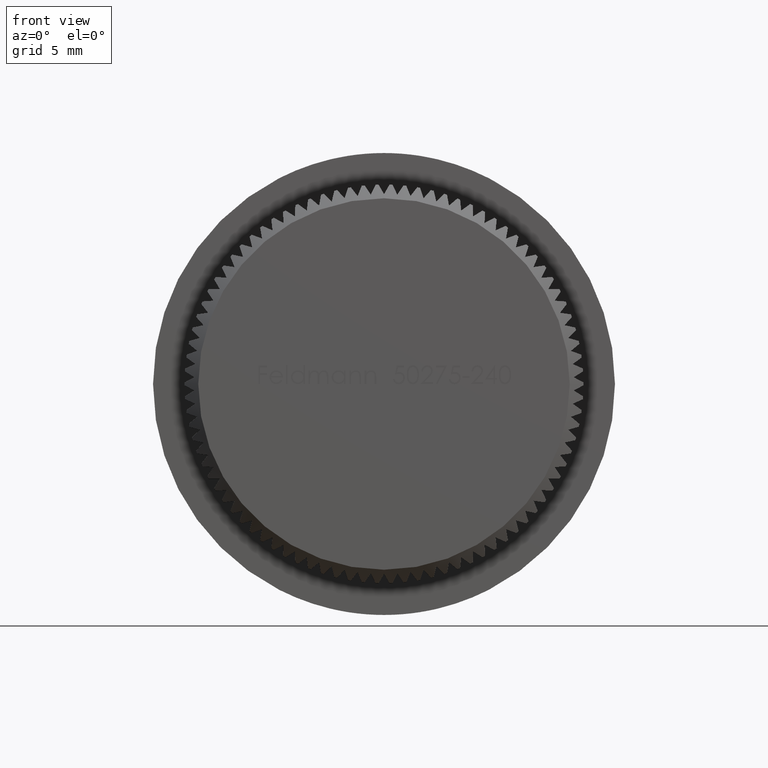
[diagram: clean part render]
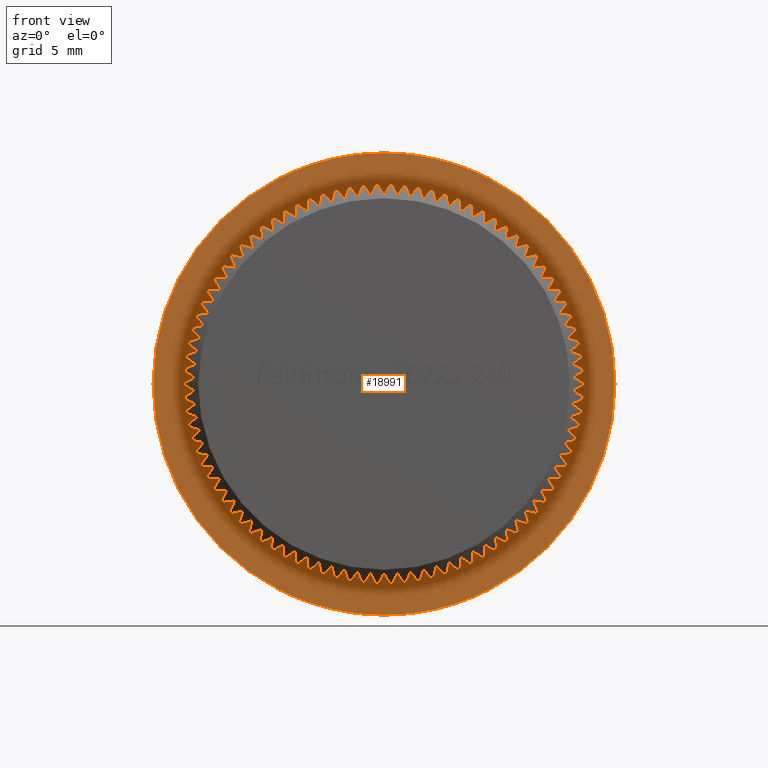
[diagram: same view with one face highlighted and labeled with its STEP entity id]
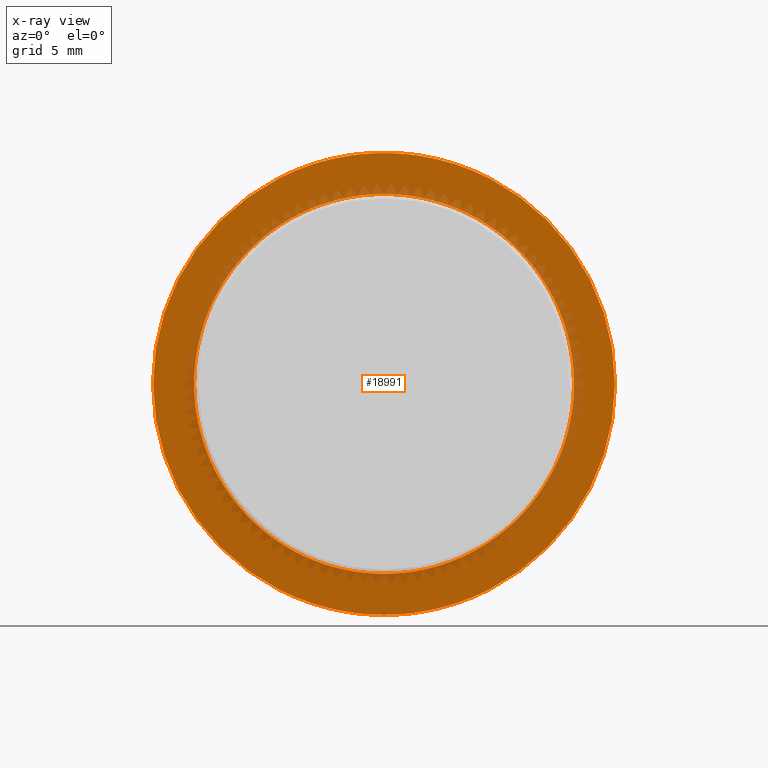
[diagram: x-ray of the same camera — body ghosted, the highlighted face saturated]
A machine part, front view. The second image highlights one B-rep face of the part: STEP entity #18991.
The next image is the same camera in x-ray: the body ghosted, the highlighted face saturated — about 13% of this face is hidden behind the body in this view.
In plain terms, the highlighted planar face has unit normal (0, -1, -0).
Its self-contained STEP definition (entity closure, byte-faithful):
#2 = VERTEX_POINT ( 'NONE', #6357 ) ;
#22 = DIRECTION ( 'NONE',  ( 0.0000000000000000000, 0.0000000000000000000, -1.000000000000000000 ) ) ;
#47 = VERTEX_POINT ( 'NONE', #22969 ) ;
#57 = EDGE_CURVE ( 'NONE', #20898, #21663, #11568, .T. ) ;
#59 = VERTEX_POINT ( 'NONE', #17520 ) ;
#68 = VERTEX_POINT ( 'NONE', #22740 ) ;
#126 = EDGE_CURVE ( 'NONE', #11968, #10807, #18835, .T. ) ;
#131 = CIRCLE ( 'NONE', #21701, 13.85000000000000300 ) ;
#140 = AXIS2_PLACEMENT_3D ( 'NONE', #2458, #13467, #1200 ) ;
#147 = DIRECTION ( 'NONE',  ( -0.0000000000000000000, -1.000000000000000000, -0.0000000000000000000 ) ) ;
#151 = DIRECTION ( 'NONE',  ( 0.0000000000000000000, 0.0000000000000000000, -1.000000000000000000 ) ) ;
#237 = CARTESIAN_POINT ( 'NONE',  ( 0.0000000000000000000, 8.000000000000000000, 0.0000000000000000000 ) ) ;
#254 = DIRECTION ( 'NONE',  ( -0.0000000000000000000, -1.000000000000000000, -0.0000000000000000000 ) ) ;
#269 = EDGE_CURVE ( 'NONE', #4549, #1177, #6839, .T. ) ;
#381 = CIRCLE ( 'NONE', #4651, 13.85000000000000300 ) ;
#428 = DIRECTION ( 'NONE',  ( -0.0000000000000000000, -1.000000000000000000, -0.0000000000000000000 ) ) ;
#480 = CARTESIAN_POINT ( 'NONE',  ( 0.0000000000000000000, 8.000000000000000000, 0.0000000000000000000 ) ) ;
#585 = CIRCLE ( 'NONE', #3746, 13.85000000000000300 ) ;
#588 = CARTESIAN_POINT ( 'NONE',  ( 11.48217037988740300, 8.000000000000000000, -7.744821713069741000 ) ) ;
#648 = ORIENTED_EDGE ( 'NONE', *, *, #1680, .F. ) ;
#789 = DIRECTION ( 'NONE',  ( 0.0000000000000000000, 0.0000000000000000000, -1.000000000000000000 ) ) ;
#817 = DIRECTION ( 'NONE',  ( -0.0000000000000000000, -1.000000000000000000, -0.0000000000000000000 ) ) ;
#828 = VERTEX_POINT ( 'NONE', #2054 ) ;
#834 = EDGE_CURVE ( 'NONE', #3706, #22685, #11275, .T. ) ;
#836 = DIRECTION ( 'NONE',  ( -0.0000000000000000000, -1.000000000000000000, -0.0000000000000000000 ) ) ;
#869 = ORIENTED_EDGE ( 'NONE', *, *, #9472, .F. ) ;
#889 = AXIS2_PLACEMENT_3D ( 'NONE', #5326, #19302, #22885 ) ;
#990 = CARTESIAN_POINT ( 'NONE',  ( 13.43859580892251900, 8.000000000000000000, 3.350618254055537400 ) ) ;
#1018 = DIRECTION ( 'NONE',  ( 0.0000000000000000000, 0.0000000000000000000, -1.000000000000000000 ) ) ;
#1051 = ORIENTED_EDGE ( 'NONE', *, *, #20709, .F. ) ;
#1072 = DIRECTION ( 'NONE',  ( -0.0000000000000000000, -1.000000000000000000, -0.0000000000000000000 ) ) ;
#1087 = VERTEX_POINT ( 'NONE', #13622 ) ;
#1102 = CARTESIAN_POINT ( 'NONE',  ( -13.63958737921907800, 8.000000000000000000, -2.405027260687036900 ) ) ;
#1108 = AXIS2_PLACEMENT_3D ( 'NONE', #5966, #16801, #13363 ) ;
#1112 = FACE_BOUND ( 'NONE', #9094, .T. ) ;
#1140 = AXIS2_PLACEMENT_3D ( 'NONE', #17440, #19304, #15555 ) ;
#1149 = CARTESIAN_POINT ( 'NONE',  ( 0.0000000000000000000, 8.000000000000000000, 0.0000000000000000000 ) ) ;
#1167 = ORIENTED_EDGE ( 'NONE', *, *, #11266, .F. ) ;
#1177 = VERTEX_POINT ( 'NONE', #3619 ) ;
#1184 = DIRECTION ( 'NONE',  ( -0.0000000000000000000, -1.000000000000000000, -0.0000000000000000000 ) ) ;
#1200 = DIRECTION ( 'NONE',  ( 0.0000000000000000000, 0.0000000000000000000, -1.000000000000000000 ) ) ;
#1227 = ORIENTED_EDGE ( 'NONE', *, *, #2516, .F. ) ;
#1275 = DIRECTION ( 'NONE',  ( -0.0000000000000000000, -1.000000000000000000, -0.0000000000000000000 ) ) ;
#1277 = AXIS2_PLACEMENT_3D ( 'NONE', #2305, #11144, #21991 ) ;
#1330 = DIRECTION ( 'NONE',  ( -0.0000000000000000000, -1.000000000000000000, -0.0000000000000000000 ) ) ;
#1424 = DIRECTION ( 'NONE',  ( 0.0000000000000000000, 0.0000000000000000000, -1.000000000000000000 ) ) ;
#1447 = ORIENTED_EDGE ( 'NONE', *, *, #11603, .F. ) ;
#1554 = CIRCLE ( 'NONE', #14356, 13.85000000000000300 ) ;
#1582 = DIRECTION ( 'NONE',  ( 0.0000000000000000000, 0.0000000000000000000, -1.000000000000000000 ) ) ;
#1591 = EDGE_CURVE ( 'NONE', #7526, #12880, #22971, .T. ) ;
#1618 = EDGE_CURVE ( 'NONE', #2, #2587, #16280, .T. ) ;
#1625 = CARTESIAN_POINT ( 'NONE',  ( 0.0000000000000000000, 8.000000000000000000, 0.0000000000000000000 ) ) ;
#1680 = EDGE_CURVE ( 'NONE', #10375, #3055, #15708, .T. ) ;
#1703 = CARTESIAN_POINT ( 'NONE',  ( -6.502181144584602300, 8.000000000000000000, 12.22882416109613500 ) ) ;
#1724 = EDGE_CURVE ( 'NONE', #3409, #20409, #22137, .T. ) ;
#1775 = CARTESIAN_POINT ( 'NONE',  ( 0.0000000000000000000, 8.000000000000000000, 0.0000000000000000000 ) ) ;
#1796 = CIRCLE ( 'NONE', #11620, 13.85000000000000300 ) ;
#1845 = CIRCLE ( 'NONE', #1903, 16.85000000000000500 ) ;
#1853 = DIRECTION ( 'NONE',  ( -0.0000000000000000000, -1.000000000000000000, -0.0000000000000000000 ) ) ;
#1858 = CIRCLE ( 'NONE', #16677, 13.85000000000000300 ) ;
#1903 = AXIS2_PLACEMENT_3D ( 'NONE', #21819, #428, #5976 ) ;
#1919 = AXIS2_PLACEMENT_3D ( 'NONE', #22661, #19152, #13928 ) ;
#1921 = DIRECTION ( 'NONE',  ( 0.0000000000000000000, 0.0000000000000000000, -1.000000000000000000 ) ) ;
#1930 = CARTESIAN_POINT ( 'NONE',  ( 0.0000000000000000000, 8.000000000000000000, 0.0000000000000000000 ) ) ;
#1955 = EDGE_CURVE ( 'NONE', #10714, #2070, #18790, .T. ) ;
#1964 = CIRCLE ( 'NONE', #10930, 16.85000000000000500 ) ;
#1965 = CARTESIAN_POINT ( 'NONE',  ( 0.0000000000000000000, 8.000000000000000000, 0.0000000000000000000 ) ) ;
#1969 = AXIS2_PLACEMENT_3D ( 'NONE', #16357, #4016, #18160 ) ;
#2026 = DIRECTION ( 'NONE',  ( -0.0000000000000000000, -1.000000000000000000, -0.0000000000000000000 ) ) ;
#2054 = CARTESIAN_POINT ( 'NONE',  ( -1.927547448296910800, 8.000000000000000000, 13.71521275207075300 ) ) ;
#2070 = VERTEX_POINT ( 'NONE', #6865 ) ;
#2105 = DIRECTION ( 'NONE',  ( -0.0000000000000000000, -1.000000000000000000, -0.0000000000000000000 ) ) ;
#2116 = CARTESIAN_POINT ( 'NONE',  ( 13.77412825085060500, 8.000000000000000000, -1.447719216256864800 ) ) ;
#2147 = CARTESIAN_POINT ( 'NONE',  ( -8.902608394158516300, 8.000000000000000000, -10.60971553719789600 ) ) ;
#2180 = ORIENTED_EDGE ( 'NONE', *, *, #20045, .F. ) ;
#2258 = AXIS2_PLACEMENT_3D ( 'NONE', #17599, #21114, #1424 ) ;
#2268 = CARTESIAN_POINT ( 'NONE',  ( 6.502181144584437100, 8.000000000000000000, 12.22882416109622400 ) ) ;
#2305 = CARTESIAN_POINT ( 'NONE',  ( 0.0000000000000000000, 8.000000000000000000, 0.0000000000000000000 ) ) ;
#2308 = PLANE ( 'NONE',  #15907 ) ;
#2318 = DIRECTION ( 'NONE',  ( -0.0000000000000000000, -1.000000000000000000, -0.0000000000000000000 ) ) ;
#2350 = AXIS2_PLACEMENT_3D ( 'NONE', #20202, #20287, #9526 ) ;
#2407 = AXIS2_PLACEMENT_3D ( 'NONE', #2712, #836, #11680 ) ;
#2412 = CARTESIAN_POINT ( 'NONE',  ( 0.0000000000000000000, 8.000000000000000000, 0.0000000000000000000 ) ) ;
#2454 = CARTESIAN_POINT ( 'NONE',  ( 4.736978985060611400, 8.000000000000000000, -13.01474279788480000 ) ) ;
#2458 = CARTESIAN_POINT ( 'NONE',  ( 0.0000000000000000000, 8.000000000000000000, 0.0000000000000000000 ) ) ;
#2478 = CARTESIAN_POINT ( 'NONE',  ( 0.0000000000000000000, 8.000000000000000000, 0.0000000000000000000 ) ) ;
#2511 = CARTESIAN_POINT ( 'NONE',  ( 0.0000000000000000000, 8.000000000000000000, 0.0000000000000000000 ) ) ;
#2516 = EDGE_CURVE ( 'NONE', #8517, #11968, #21848, .T. ) ;
#2530 = ORIENTED_EDGE ( 'NONE', *, *, #8481, .F. ) ;
#2561 = DIRECTION ( 'NONE',  ( -0.0000000000000000000, -1.000000000000000000, -0.0000000000000000000 ) ) ;
#2587 = VERTEX_POINT ( 'NONE', #1703 ) ;
#2616 = DIRECTION ( 'NONE',  ( -0.0000000000000000000, -1.000000000000000000, -0.0000000000000000000 ) ) ;
#2679 = EDGE_CURVE ( 'NONE', #18185, #22302, #8150, .T. ) ;
#2712 = CARTESIAN_POINT ( 'NONE',  ( 0.0000000000000000000, 8.000000000000000000, 0.0000000000000000000 ) ) ;
#2751 = CIRCLE ( 'NONE', #15759, 13.85000000000000300 ) ;
#2752 = CARTESIAN_POINT ( 'NONE',  ( 3.817577378065270200, 8.000000000000000000, 13.31347448874576900 ) ) ;
#2777 = CARTESIAN_POINT ( 'NONE',  ( 0.0000000000000000000, 8.000000000000000000, 0.0000000000000000000 ) ) ;
#2787 = AXIS2_PLACEMENT_3D ( 'NONE', #20631, #4703, #15633 ) ;
#2816 = EDGE_CURVE ( 'NONE', #22924, #6706, #585, .T. ) ;
#2854 = EDGE_CURVE ( 'NONE', #4949, #47, #12893, .T. ) ;
#2859 = AXIS2_PLACEMENT_3D ( 'NONE', #21850, #2318, #3901 ) ;
#2880 = DIRECTION ( 'NONE',  ( 0.0000000000000000000, 0.0000000000000000000, -1.000000000000000000 ) ) ;
#2969 = VERTEX_POINT ( 'NONE', #17242 ) ;
#2983 = AXIS2_PLACEMENT_3D ( 'NONE', #20978, #22986, #1582 ) ;
#3021 = CARTESIAN_POINT ( 'NONE',  ( -13.77412825085059500, 8.000000000000000000, 1.447719216256959400 ) ) ;
#3041 = DIRECTION ( 'NONE',  ( 0.0000000000000000000, 0.0000000000000000000, -1.000000000000000000 ) ) ;
#3055 = VERTEX_POINT ( 'NONE', #18610 ) ;
#3079 = EDGE_CURVE ( 'NONE', #10755, #10348, #3661, .T. ) ;
#3090 = DIRECTION ( 'NONE',  ( 0.0000000000000000000, 0.0000000000000000000, -1.000000000000000000 ) ) ;
#3093 = CARTESIAN_POINT ( 'NONE',  ( 0.0000000000000000000, 8.000000000000000000, 0.0000000000000000000 ) ) ;
#3121 = DIRECTION ( 'NONE',  ( 0.0000000000000000000, 0.0000000000000000000, -1.000000000000000000 ) ) ;
#3145 = ORIENTED_EDGE ( 'NONE', *, *, #269, .F. ) ;
#3179 = ORIENTED_EDGE ( 'NONE', *, *, #16239, .F. ) ;
#3189 = DIRECTION ( 'NONE',  ( 0.0000000000000000000, 0.0000000000000000000, -1.000000000000000000 ) ) ;
#3274 = EDGE_CURVE ( 'NONE', #16692, #7991, #1964, .T. ) ;
#3355 = AXIS2_PLACEMENT_3D ( 'NONE', #15923, #147, #1921 ) ;
#3409 = VERTEX_POINT ( 'NONE', #18193 ) ;
#3416 = CARTESIAN_POINT ( 'NONE',  ( 0.0000000000000000000, 8.000000000000000000, 0.0000000000000000000 ) ) ;
#3425 = DIRECTION ( 'NONE',  ( 0.0000000000000000000, 0.0000000000000000000, -1.000000000000000000 ) ) ;
#3438 = DIRECTION ( 'NONE',  ( -0.0000000000000000000, -1.000000000000000000, -0.0000000000000000000 ) ) ;
#3453 = AXIS2_PLACEMENT_3D ( 'NONE', #16540, #5867, #21926 ) ;
#3459 = CARTESIAN_POINT ( 'NONE',  ( -11.48217037988734600, 8.000000000000000000, 7.744821713069820000 ) ) ;
#3491 = CARTESIAN_POINT ( 'NONE',  ( 0.0000000000000000000, 8.000000000000000000, 0.0000000000000000000 ) ) ;
#3500 = ORIENTED_EDGE ( 'NONE', *, *, #16873, .F. ) ;
#3516 = DIRECTION ( 'NONE',  ( -0.0000000000000000000, -1.000000000000000000, -0.0000000000000000000 ) ) ;
#3536 = CIRCLE ( 'NONE', #1277, 13.85000000000000300 ) ;
#3578 = CARTESIAN_POINT ( 'NONE',  ( 0.0000000000000000000, 8.000000000000000000, 0.0000000000000000000 ) ) ;
#3597 = CIRCLE ( 'NONE', #22174, 13.85000000000000300 ) ;
#3614 = CARTESIAN_POINT ( 'NONE',  ( 0.0000000000000000000, 8.000000000000000000, 0.0000000000000000000 ) ) ;
#3617 = ORIENTED_EDGE ( 'NONE', *, *, #4989, .F. ) ;
#3619 = CARTESIAN_POINT ( 'NONE',  ( -5.633302506599760000, 8.000000000000000000, -12.65260458835005900 ) ) ;
#3620 = DIRECTION ( 'NONE',  ( 0.0000000000000000000, 0.0000000000000000000, -1.000000000000000000 ) ) ;
#3659 = DIRECTION ( 'NONE',  ( -0.0000000000000000000, -1.000000000000000000, -0.0000000000000000000 ) ) ;
#3661 = CIRCLE ( 'NONE', #17684, 13.85000000000000300 ) ;
#3687 = DIRECTION ( 'NONE',  ( -0.0000000000000000000, -1.000000000000000000, -0.0000000000000000000 ) ) ;
#3706 = VERTEX_POINT ( 'NONE', #3459 ) ;
#3730 = ORIENTED_EDGE ( 'NONE', *, *, #13396, .F. ) ;
#3746 = AXIS2_PLACEMENT_3D ( 'NONE', #2478, #13175, #8039 ) ;
#3812 = VERTEX_POINT ( 'NONE', #5509 ) ;
#3884 = CARTESIAN_POINT ( 'NONE',  ( 0.0000000000000000000, 8.000000000000000000, 0.0000000000000000000 ) ) ;
#3901 = DIRECTION ( 'NONE',  ( 0.0000000000000000000, 0.0000000000000000000, -1.000000000000000000 ) ) ;
#3902 = AXIS2_PLACEMENT_3D ( 'NONE', #15285, #8123, #9836 ) ;
#3929 = ORIENTED_EDGE ( 'NONE', *, *, #22080, .F. ) ;
#3941 = AXIS2_PLACEMENT_3D ( 'NONE', #6827, #22821, #17674 ) ;
#3956 = DIRECTION ( 'NONE',  ( -0.0000000000000000000, -1.000000000000000000, -0.0000000000000000000 ) ) ;
#3962 = CARTESIAN_POINT ( 'NONE',  ( 13.43859580892258900, 8.000000000000000000, -3.350618254055267800 ) ) ;
#4014 = DIRECTION ( 'NONE',  ( -0.0000000000000000000, -1.000000000000000000, -0.0000000000000000000 ) ) ;
#4016 = DIRECTION ( 'NONE',  ( -0.0000000000000000000, -1.000000000000000000, -0.0000000000000000000 ) ) ;
#4056 = ORIENTED_EDGE ( 'NONE', *, *, #9837, .F. ) ;
#4135 = CIRCLE ( 'NONE', #18770, 13.85000000000000300 ) ;
#4143 = DIRECTION ( 'NONE',  ( -0.0000000000000000000, -1.000000000000000000, -0.0000000000000000000 ) ) ;
#4196 = EDGE_CURVE ( 'NONE', #2070, #20714, #13408, .T. ) ;
#4215 = CARTESIAN_POINT ( 'NONE',  ( 0.0000000000000000000, 8.000000000000000000, 0.0000000000000000000 ) ) ;
#4227 = ORIENTED_EDGE ( 'NONE', *, *, #9399, .F. ) ;
#4237 = ORIENTED_EDGE ( 'NONE', *, *, #2816, .F. ) ;
#4259 = AXIS2_PLACEMENT_3D ( 'NONE', #3884, #12469, #21541 ) ;
#4295 = CARTESIAN_POINT ( 'NONE',  ( 13.84156295421447400, 8.000000000000000000, 0.4833580293297770100 ) ) ;
#4378 = DIRECTION ( 'NONE',  ( 0.0000000000000000000, 0.0000000000000000000, -1.000000000000000000 ) ) ;
#4402 = AXIS2_PLACEMENT_3D ( 'NONE', #19812, #19515, #151 ) ;
#4424 = DIRECTION ( 'NONE',  ( 0.0000000000000000000, 0.0000000000000000000, -1.000000000000000000 ) ) ;
#4453 = VERTEX_POINT ( 'NONE', #13478 ) ;
#4511 = ORIENTED_EDGE ( 'NONE', *, *, #126, .F. ) ;
#4534 = CARTESIAN_POINT ( 'NONE',  ( 0.0000000000000000000, 8.000000000000000000, 0.0000000000000000000 ) ) ;
#4539 = AXIS2_PLACEMENT_3D ( 'NONE', #12312, #3659, #14218 ) ;
#4545 = VERTEX_POINT ( 'NONE', #13875 ) ;
#4549 = VERTEX_POINT ( 'NONE', #19185 ) ;
#4588 = CARTESIAN_POINT ( 'NONE',  ( -7.339381809629905700, 8.000000000000000000, 11.74546613176649300 ) ) ;
#4638 = VERTEX_POINT ( 'NONE', #14357 ) ;
#4642 = ORIENTED_EDGE ( 'NONE', *, *, #20040, .F. ) ;
#4651 = AXIS2_PLACEMENT_3D ( 'NONE', #16547, #4143, #7659 ) ;
#4677 = CIRCLE ( 'NONE', #1140, 13.85000000000000300 ) ;
#4703 = DIRECTION ( 'NONE',  ( -0.0000000000000000000, -1.000000000000000000, -0.0000000000000000000 ) ) ;
#4752 = VERTEX_POINT ( 'NONE', #16515 ) ;
#4756 = DIRECTION ( 'NONE',  ( 0.0000000000000000000, 0.0000000000000000000, -1.000000000000000000 ) ) ;
#4834 = ORIENTED_EDGE ( 'NONE', *, *, #13873, .F. ) ;
#4881 = AXIS2_PLACEMENT_3D ( 'NONE', #1930, #3438, #16174 ) ;
#4906 = ORIENTED_EDGE ( 'NONE', *, *, #8587, .F. ) ;
#4923 = DIRECTION ( 'NONE',  ( -0.0000000000000000000, -1.000000000000000000, -0.0000000000000000000 ) ) ;
#4949 = VERTEX_POINT ( 'NONE', #2454 ) ;
#4956 = CIRCLE ( 'NONE', #15960, 13.85000000000000300 ) ;
#4989 = EDGE_CURVE ( 'NONE', #10807, #7326, #20949, .T. ) ;
#5018 = DIRECTION ( 'NONE',  ( -0.0000000000000000000, -1.000000000000000000, -0.0000000000000000000 ) ) ;
#5056 = EDGE_CURVE ( 'NONE', #13749, #8211, #10033, .T. ) ;
#5067 = ORIENTED_EDGE ( 'NONE', *, *, #18420, .F. ) ;
#5087 = CARTESIAN_POINT ( 'NONE',  ( -9.621018430857065000, 8.000000000000000000, -9.962856234690370600 ) ) ;
#5092 = CARTESIAN_POINT ( 'NONE',  ( -10.91394893745305900, 8.000000000000000000, -8.526911433260421400 ) ) ;
#5115 = EDGE_CURVE ( 'NONE', #18379, #3409, #9217, .T. ) ;
#5133 = CARTESIAN_POINT ( 'NONE',  ( 0.0000000000000000000, 8.000000000000000000, 0.0000000000000000000 ) ) ;
#5253 = EDGE_CURVE ( 'NONE', #22302, #10087, #17009, .T. ) ;
#5303 = CARTESIAN_POINT ( 'NONE',  ( -12.84149638574998800, 8.000000000000000000, -5.188301318810436800 ) ) ;
#5326 = CARTESIAN_POINT ( 'NONE',  ( 0.0000000000000000000, 8.000000000000000000, 0.0000000000000000000 ) ) ;
#5331 = AXIS2_PLACEMENT_3D ( 'NONE', #1965, #14498, #11117 ) ;
#5415 = CARTESIAN_POINT ( 'NONE',  ( 2.879576917826065100, 8.000000000000000000, -13.54734427016319200 ) ) ;
#5443 = EDGE_CURVE ( 'NONE', #3055, #8098, #3597, .T. ) ;
#5471 = ORIENTED_EDGE ( 'NONE', *, *, #5115, .F. ) ;
#5486 = DIRECTION ( 'NONE',  ( -0.0000000000000000000, -1.000000000000000000, -0.0000000000000000000 ) ) ;
#5509 = CARTESIAN_POINT ( 'NONE',  ( -10.29255583286186500, 8.000000000000000000, -9.267458898070239900 ) ) ;
#5535 = CARTESIAN_POINT ( 'NONE',  ( -16.85000000000000500, 7.999999999999998200, 2.063529856563290200E-015 ) ) ;
#5549 = DIRECTION ( 'NONE',  ( -0.0000000000000000000, -1.000000000000000000, -0.0000000000000000000 ) ) ;
#5592 = CARTESIAN_POINT ( 'NONE',  ( 0.0000000000000000000, 8.000000000000000000, 0.0000000000000000000 ) ) ;
#5632 = CIRCLE ( 'NONE', #12897, 13.85000000000000300 ) ;
#5635 = ORIENTED_EDGE ( 'NONE', *, *, #834, .F. ) ;
#5717 = DIRECTION ( 'NONE',  ( -0.0000000000000000000, -1.000000000000000000, -0.0000000000000000000 ) ) ;
#5725 = DIRECTION ( 'NONE',  ( 0.0000000000000000000, 0.0000000000000000000, -1.000000000000000000 ) ) ;
#5787 = DIRECTION ( 'NONE',  ( 0.0000000000000000000, 0.0000000000000000000, -1.000000000000000000 ) ) ;
#5796 = ORIENTED_EDGE ( 'NONE', *, *, #1724, .F. ) ;
#5823 = CARTESIAN_POINT ( 'NONE',  ( 0.0000000000000000000, 8.000000000000000000, 0.0000000000000000000 ) ) ;
#5838 = CIRCLE ( 'NONE', #9790, 13.85000000000000300 ) ;
#5842 = DIRECTION ( 'NONE',  ( 0.0000000000000000000, 0.0000000000000000000, -1.000000000000000000 ) ) ;
#5867 = DIRECTION ( 'NONE',  ( -0.0000000000000000000, -1.000000000000000000, -0.0000000000000000000 ) ) ;
#5868 = DIRECTION ( 'NONE',  ( -0.0000000000000000000, -1.000000000000000000, -0.0000000000000000000 ) ) ;
#5928 = CARTESIAN_POINT ( 'NONE',  ( 16.85000000000000100, 8.000000000000000000, 0.0000000000000000000 ) ) ;
#5950 = DIRECTION ( 'NONE',  ( -0.0000000000000000000, -1.000000000000000000, -0.0000000000000000000 ) ) ;
#5962 = CARTESIAN_POINT ( 'NONE',  ( -11.99445184241444700, 8.000000000000000000, -6.925000000000057600 ) ) ;
#5966 = CARTESIAN_POINT ( 'NONE',  ( 0.0000000000000000000, 8.000000000000000000, 0.0000000000000000000 ) ) ;
#5971 = CIRCLE ( 'NONE', #3453, 13.85000000000000300 ) ;
#5973 = VERTEX_POINT ( 'NONE', #4295 ) ;
#5976 = DIRECTION ( 'NONE',  ( 0.0000000000000000000, 0.0000000000000000000, -1.000000000000000000 ) ) ;
#5999 = AXIS2_PLACEMENT_3D ( 'NONE', #13727, #13968, #3041 ) ;
#6002 = ORIENTED_EDGE ( 'NONE', *, *, #13880, .F. ) ;
#6037 = CIRCLE ( 'NONE', #2350, 13.85000000000000300 ) ;
#6054 = DIRECTION ( 'NONE',  ( 0.0000000000000000000, 0.0000000000000000000, -1.000000000000000000 ) ) ;
#6115 = EDGE_CURVE ( 'NONE', #18556, #20150, #8902, .T. ) ;
#6153 = AXIS2_PLACEMENT_3D ( 'NONE', #19138, #1330, #8448 ) ;
#6187 = CARTESIAN_POINT ( 'NONE',  ( 0.9661271613562336700, 8.000000000000000000, -13.81626209609856200 ) ) ;
#6217 = DIRECTION ( 'NONE',  ( -0.0000000000000000000, -1.000000000000000000, -0.0000000000000000000 ) ) ;
#6291 = ORIENTED_EDGE ( 'NONE', *, *, #20089, .F. ) ;
#6300 = ORIENTED_EDGE ( 'NONE', *, *, #12359, .F. ) ;
#6323 = EDGE_CURVE ( 'NONE', #8966, #13274, #4135, .T. ) ;
#6324 = CARTESIAN_POINT ( 'NONE',  ( 0.0000000000000000000, 8.000000000000000000, 0.0000000000000000000 ) ) ;
#6357 = CARTESIAN_POINT ( 'NONE',  ( -5.633302506599847900, 8.000000000000000000, 12.65260458835002100 ) ) ;
#6383 = CIRCLE ( 'NONE', #4402, 13.85000000000000300 ) ;
#6400 = DIRECTION ( 'NONE',  ( -0.0000000000000000000, -1.000000000000000000, -0.0000000000000000000 ) ) ;
#6437 = CARTESIAN_POINT ( 'NONE',  ( -13.84156295421447800, 8.000000000000000000, -0.4833580293296868000 ) ) ;
#6438 = VERTEX_POINT ( 'NONE', #2752 ) ;
#6446 = VERTEX_POINT ( 'NONE', #11574 ) ;
#6528 = ORIENTED_EDGE ( 'NONE', *, *, #5443, .F. ) ;
#6537 = AXIS2_PLACEMENT_3D ( 'NONE', #21801, #7298, #5725 ) ;
#6600 = AXIS2_PLACEMENT_3D ( 'NONE', #21482, #7189, #19579 ) ;
#6604 = ORIENTED_EDGE ( 'NONE', *, *, #18766, .F. ) ;
#6639 = CIRCLE ( 'NONE', #9808, 13.85000000000000300 ) ;
#6691 = CIRCLE ( 'NONE', #16084, 13.85000000000000300 ) ;
#6706 = VERTEX_POINT ( 'NONE', #16018 ) ;
#6748 = CARTESIAN_POINT ( 'NONE',  ( 0.0000000000000000000, 8.000000000000000000, 0.0000000000000000000 ) ) ;
#6759 = DIRECTION ( 'NONE',  ( -0.0000000000000000000, -1.000000000000000000, -0.0000000000000000000 ) ) ;
#6762 = VERTEX_POINT ( 'NONE', #5303 ) ;
#6777 = AXIS2_PLACEMENT_3D ( 'NONE', #1625, #1853, #17900 ) ;
#6783 = ORIENTED_EDGE ( 'NONE', *, *, #14863, .F. ) ;
#6827 = CARTESIAN_POINT ( 'NONE',  ( 0.0000000000000000000, 8.000000000000000000, 0.0000000000000000000 ) ) ;
#6839 = CIRCLE ( 'NONE', #7182, 13.85000000000000300 ) ;
#6847 = DIRECTION ( 'NONE',  ( -0.0000000000000000000, -1.000000000000000000, -0.0000000000000000000 ) ) ;
#6865 = CARTESIAN_POINT ( 'NONE',  ( 11.48217037988724000, 8.000000000000000000, 7.744821713069982600 ) ) ;
#6872 = CARTESIAN_POINT ( 'NONE',  ( 0.0000000000000000000, 8.000000000000000000, 0.0000000000000000000 ) ) ;
#6912 = CIRCLE ( 'NONE', #9669, 13.85000000000000300 ) ;
#6949 = DIRECTION ( 'NONE',  ( 0.0000000000000000000, 0.0000000000000000000, -1.000000000000000000 ) ) ;
#7033 = AXIS2_PLACEMENT_3D ( 'NONE', #7864, #817, #20346 ) ;
#7069 = CARTESIAN_POINT ( 'NONE',  ( 0.0000000000000000000, 8.000000000000000000, 0.0000000000000000000 ) ) ;
#7099 = CARTESIAN_POINT ( 'NONE',  ( 0.9661271613559431200, 8.000000000000000000, 13.81626209609858300 ) ) ;
#7182 = AXIS2_PLACEMENT_3D ( 'NONE', #7519, #18352, #19828 ) ;
#7189 = DIRECTION ( 'NONE',  ( -0.0000000000000000000, -1.000000000000000000, -0.0000000000000000000 ) ) ;
#7218 = EDGE_CURVE ( 'NONE', #8504, #20768, #6383, .T. ) ;
#7241 = VERTEX_POINT ( 'NONE', #17969 ) ;
#7294 = EDGE_CURVE ( 'NONE', #16034, #13749, #18920, .T. ) ;
#7298 = DIRECTION ( 'NONE',  ( -0.0000000000000000000, -1.000000000000000000, -0.0000000000000000000 ) ) ;
#7326 = VERTEX_POINT ( 'NONE', #22939 ) ;
#7449 = ORIENTED_EDGE ( 'NONE', *, *, #20537, .F. ) ;
#7519 = CARTESIAN_POINT ( 'NONE',  ( 0.0000000000000000000, 8.000000000000000000, 0.0000000000000000000 ) ) ;
#7521 = CIRCLE ( 'NONE', #7543, 13.85000000000000300 ) ;
#7526 = VERTEX_POINT ( 'NONE', #10423 ) ;
#7543 = AXIS2_PLACEMENT_3D ( 'NONE', #12510, #3687, #16333 ) ;
#7547 = DIRECTION ( 'NONE',  ( 0.0000000000000000000, 0.0000000000000000000, -1.000000000000000000 ) ) ;
#7568 = ORIENTED_EDGE ( 'NONE', *, *, #10516, .F. ) ;
#7588 = AXIS2_PLACEMENT_3D ( 'NONE', #14075, #5018, #15776 ) ;
#7616 = DIRECTION ( 'NONE',  ( -0.0000000000000000000, -1.000000000000000000, -0.0000000000000000000 ) ) ;
#7631 = DIRECTION ( 'NONE',  ( 0.0000000000000000000, 0.0000000000000000000, -1.000000000000000000 ) ) ;
#7659 = DIRECTION ( 'NONE',  ( 0.0000000000000000000, 0.0000000000000000000, -1.000000000000000000 ) ) ;
#7722 = CIRCLE ( 'NONE', #16728, 13.85000000000000300 ) ;
#7744 = VERTEX_POINT ( 'NONE', #22108 ) ;
#7767 = EDGE_CURVE ( 'NONE', #10505, #16034, #21174, .T. ) ;
#7785 = AXIS2_PLACEMENT_3D ( 'NONE', #3093, #15578, #8640 ) ;
#7793 = VERTEX_POINT ( 'NONE', #20225 ) ;
#7828 = AXIS2_PLACEMENT_3D ( 'NONE', #22759, #6847, #15583 ) ;
#7864 = CARTESIAN_POINT ( 'NONE',  ( 0.0000000000000000000, 8.000000000000000000, 0.0000000000000000000 ) ) ;
#7897 = EDGE_CURVE ( 'NONE', #12647, #15719, #13337, .T. ) ;
#7991 = VERTEX_POINT ( 'NONE', #21283 ) ;
#8035 = VERTEX_POINT ( 'NONE', #16123 ) ;
#8039 = DIRECTION ( 'NONE',  ( 0.0000000000000000000, 0.0000000000000000000, -1.000000000000000000 ) ) ;
#8069 = CARTESIAN_POINT ( 'NONE',  ( 0.0000000000000000000, 8.000000000000000000, 0.0000000000000000000 ) ) ;
#8074 = EDGE_CURVE ( 'NONE', #21709, #8365, #6639, .T. ) ;
#8098 = VERTEX_POINT ( 'NONE', #2268 ) ;
#8123 = DIRECTION ( 'NONE',  ( -0.0000000000000000000, -1.000000000000000000, -0.0000000000000000000 ) ) ;
#8126 = ORIENTED_EDGE ( 'NONE', *, *, #12707, .F. ) ;
#8146 = ORIENTED_EDGE ( 'NONE', *, *, #8801, .F. ) ;
#8150 = CIRCLE ( 'NONE', #2859, 13.85000000000000300 ) ;
#8196 = CARTESIAN_POINT ( 'NONE',  ( 11.99445184241454300, 8.000000000000000000, -6.924999999999889700 ) ) ;
#8211 = VERTEX_POINT ( 'NONE', #9620 ) ;
#8214 = VERTEX_POINT ( 'NONE', #6187 ) ;
#8300 = CIRCLE ( 'NONE', #2787, 13.85000000000000300 ) ;
#8309 = VERTEX_POINT ( 'NONE', #10062 ) ;
#8344 = EDGE_CURVE ( 'NONE', #6446, #2969, #1858, .T. ) ;
#8365 = VERTEX_POINT ( 'NONE', #20521 ) ;
#8429 = CIRCLE ( 'NONE', #22918, 13.85000000000000300 ) ;
#8440 = AXIS2_PLACEMENT_3D ( 'NONE', #6872, #21074, #14127 ) ;
#8448 = DIRECTION ( 'NONE',  ( 0.0000000000000000000, 0.0000000000000000000, -1.000000000000000000 ) ) ;
#8464 = DIRECTION ( 'NONE',  ( 0.0000000000000000000, 0.0000000000000000000, -1.000000000000000000 ) ) ;
#8476 = CARTESIAN_POINT ( 'NONE',  ( 0.0000000000000000000, 8.000000000000000000, 0.0000000000000000000 ) ) ;
#8481 = EDGE_CURVE ( 'NONE', #14776, #7241, #14192, .T. ) ;
#8495 = CIRCLE ( 'NONE', #19890, 13.85000000000000300 ) ;
#8504 = VERTEX_POINT ( 'NONE', #990 ) ;
#8513 = EDGE_CURVE ( 'NONE', #15719, #11235, #17832, .T. ) ;
#8517 = VERTEX_POINT ( 'NONE', #4588 ) ;
#8524 = CIRCLE ( 'NONE', #2983, 13.85000000000000300 ) ;
#8537 = DIRECTION ( 'NONE',  ( -0.0000000000000000000, -1.000000000000000000, -0.0000000000000000000 ) ) ;
#8561 = ORIENTED_EDGE ( 'NONE', *, *, #11230, .F. ) ;
#8563 = CIRCLE ( 'NONE', #14161, 13.85000000000000300 ) ;
#8587 = EDGE_CURVE ( 'NONE', #20809, #4752, #23110, .T. ) ;
#8619 = AXIS2_PLACEMENT_3D ( 'NONE', #8476, #1275, #3090 ) ;
#8640 = DIRECTION ( 'NONE',  ( 0.0000000000000000000, 0.0000000000000000000, -1.000000000000000000 ) ) ;
#8693 = CARTESIAN_POINT ( 'NONE',  ( 0.0000000000000000000, 8.000000000000000000, 0.0000000000000000000 ) ) ;
#8733 = AXIS2_PLACEMENT_3D ( 'NONE', #15113, #20350, #4424 ) ;
#8752 = DIRECTION ( 'NONE',  ( 0.0000000000000000000, 0.0000000000000000000, -1.000000000000000000 ) ) ;
#8801 = EDGE_CURVE ( 'NONE', #12880, #10714, #15535, .T. ) ;
#8902 = CIRCLE ( 'NONE', #11410, 13.85000000000000300 ) ;
#8966 = VERTEX_POINT ( 'NONE', #3962 ) ;
#8974 = EDGE_CURVE ( 'NONE', #5973, #14775, #3536, .T. ) ;
#9066 = EDGE_CURVE ( 'NONE', #11235, #6446, #6912, .T. ) ;
#9094 = EDGE_LOOP ( 'NONE', ( #4237, #17949, #4642, #13213, #1447, #15299, #20297, #11705, #6528, #648, #22609, #22404, #13217, #12110, #9305, #22433, #8146, #12720, #11911, #17394, #6604, #19446, #13308, #20939, #4056, #8561, #16633, #6783, #11915, #19933, #14159, #17378, #11054, #5796, #5471, #3929, #12562, #14610, #18785, #12440, #22292, #7568, #15294, #4834, #19387, #11076, #8126, #4227, #21764, #19147, #9649, #16960, #3145, #19231, #2530, #3500, #869, #10270, #18859, #1167, #4906, #5067, #18506, #9933, #13289, #9508, #13087, #3179, #1051, #15927, #22846, #16156, #18023, #6300, #22955, #21490, #5635, #7449, #2180, #6002, #3617, #4511, #1227, #19399, #10654, #12588, #3730, #17861, #6291, #18526 ) ) ;
#9128 = CIRCLE ( 'NONE', #19242, 13.85000000000000300 ) ;
#9161 = CARTESIAN_POINT ( 'NONE',  ( 0.0000000000000000000, 8.000000000000000000, 0.0000000000000000000 ) ) ;
#9165 = DIRECTION ( 'NONE',  ( 0.0000000000000000000, 0.0000000000000000000, -1.000000000000000000 ) ) ;
#9187 = CIRCLE ( 'NONE', #3355, 13.85000000000000300 ) ;
#9217 = CIRCLE ( 'NONE', #11700, 13.85000000000000300 ) ;
#9237 = CARTESIAN_POINT ( 'NONE',  ( 13.77412825085057700, 8.000000000000000000, 1.447719216257140800 ) ) ;
#9245 = CARTESIAN_POINT ( 'NONE',  ( -8.673617379884035500E-016, 8.000000000000000000, 13.85000000000000300 ) ) ;
#9305 = ORIENTED_EDGE ( 'NONE', *, *, #4196, .F. ) ;
#9345 = CIRCLE ( 'NONE', #5999, 13.85000000000000300 ) ;
#9369 = CIRCLE ( 'NONE', #15832, 13.85000000000000300 ) ;
#9399 = EDGE_CURVE ( 'NONE', #68, #7793, #14695, .T. ) ;
#9449 = DIRECTION ( 'NONE',  ( -0.0000000000000000000, -1.000000000000000000, -0.0000000000000000000 ) ) ;
#9458 = DIRECTION ( 'NONE',  ( 0.0000000000000000000, 0.0000000000000000000, -1.000000000000000000 ) ) ;
#9466 = EDGE_CURVE ( 'NONE', #14775, #19550, #9128, .T. ) ;
#9467 = DIRECTION ( 'NONE',  ( 0.0000000000000000000, 0.0000000000000000000, -1.000000000000000000 ) ) ;
#9472 = EDGE_CURVE ( 'NONE', #9673, #17975, #8563, .T. ) ;
#9487 = CARTESIAN_POINT ( 'NONE',  ( 0.0000000000000000000, 8.000000000000000000, 0.0000000000000000000 ) ) ;
#9503 = CARTESIAN_POINT ( 'NONE',  ( 0.0000000000000000000, 8.000000000000000000, 0.0000000000000000000 ) ) ;
#9508 = ORIENTED_EDGE ( 'NONE', *, *, #7294, .F. ) ;
#9526 = DIRECTION ( 'NONE',  ( 0.0000000000000000000, 0.0000000000000000000, -1.000000000000000000 ) ) ;
#9620 = CARTESIAN_POINT ( 'NONE',  ( -13.17213275068786200, 8.000000000000000000, -4.279885372093078300 ) ) ;
#9649 = ORIENTED_EDGE ( 'NONE', *, *, #18775, .F. ) ;
#9669 = AXIS2_PLACEMENT_3D ( 'NONE', #2777, #2616, #20653 ) ;
#9673 = VERTEX_POINT ( 'NONE', #5087 ) ;
#9767 = EDGE_CURVE ( 'NONE', #7241, #4549, #17917, .T. ) ;
#9790 = AXIS2_PLACEMENT_3D ( 'NONE', #3614, #2026, #22 ) ;
#9808 = AXIS2_PLACEMENT_3D ( 'NONE', #14704, #2105, #18370 ) ;
#9819 = CIRCLE ( 'NONE', #9956, 13.85000000000000300 ) ;
#9836 = DIRECTION ( 'NONE',  ( 0.0000000000000000000, 0.0000000000000000000, -1.000000000000000000 ) ) ;
#9837 = EDGE_CURVE ( 'NONE', #11526, #8309, #11131, .T. ) ;
#9878 = AXIS2_PLACEMENT_3D ( 'NONE', #1149, #1072, #22390 ) ;
#9933 = ORIENTED_EDGE ( 'NONE', *, *, #10508, .F. ) ;
#9956 = AXIS2_PLACEMENT_3D ( 'NONE', #22274, #20556, #13449 ) ;
#9981 = CARTESIAN_POINT ( 'NONE',  ( -13.84156295421448300, 8.000000000000000000, 0.4833580293295905400 ) ) ;
#9994 = CIRCLE ( 'NONE', #7588, 13.85000000000000300 ) ;
#10032 = DIRECTION ( 'NONE',  ( 0.0000000000000000000, 0.0000000000000000000, -1.000000000000000000 ) ) ;
#10033 = CIRCLE ( 'NONE', #2258, 13.85000000000000300 ) ;
#10040 = CARTESIAN_POINT ( 'NONE',  ( -4.736978985060523500, 8.000000000000000000, 13.01474279788483200 ) ) ;
#10062 = CARTESIAN_POINT ( 'NONE',  ( 13.84156295421448700, 8.000000000000000000, -0.4833580293295003400 ) ) ;
#10087 = VERTEX_POINT ( 'NONE', #9981 ) ;
#10250 = VERTEX_POINT ( 'NONE', #10720 ) ;
#10270 = ORIENTED_EDGE ( 'NONE', *, *, #17682, .F. ) ;
#10298 = AXIS2_PLACEMENT_3D ( 'NONE', #4215, #13113, #13188 ) ;
#10348 = VERTEX_POINT ( 'NONE', #18372 ) ;
#10375 = VERTEX_POINT ( 'NONE', #11788 ) ;
#10379 = CARTESIAN_POINT ( 'NONE',  ( 0.0000000000000000000, 8.000000000000000000, 0.0000000000000000000 ) ) ;
#10406 = CARTESIAN_POINT ( 'NONE',  ( 7.339381809629987400, 8.000000000000000000, -11.74546613176644200 ) ) ;
#10423 = CARTESIAN_POINT ( 'NONE',  ( 12.84149638574994700, 8.000000000000000000, 5.188301318810530900 ) ) ;
#10427 = CARTESIAN_POINT ( 'NONE',  ( -4.736978985060436500, 8.000000000000000000, -13.01474279788486400 ) ) ;
#10439 = DIRECTION ( 'NONE',  ( -0.0000000000000000000, -1.000000000000000000, -0.0000000000000000000 ) ) ;
#10444 = EDGE_CURVE ( 'NONE', #20150, #68, #9994, .T. ) ;
#10500 = CARTESIAN_POINT ( 'NONE',  ( 9.621018430857200000, 8.000000000000000000, -9.962856234690239200 ) ) ;
#10505 = VERTEX_POINT ( 'NONE', #13763 ) ;
#10508 = EDGE_CURVE ( 'NONE', #8211, #6762, #4677, .T. ) ;
#10516 = EDGE_CURVE ( 'NONE', #8365, #4949, #20314, .T. ) ;
#10526 = AXIS2_PLACEMENT_3D ( 'NONE', #19614, #21440, #3620 ) ;
#10552 = EDGE_CURVE ( 'NONE', #12780, #2, #11116, .T. ) ;
#10636 = DIRECTION ( 'NONE',  ( 0.0000000000000000000, 0.0000000000000000000, -1.000000000000000000 ) ) ;
#10654 = ORIENTED_EDGE ( 'NONE', *, *, #1618, .F. ) ;
#10680 = AXIS2_PLACEMENT_3D ( 'NONE', #3416, #15830, #19566 ) ;
#10688 = CARTESIAN_POINT ( 'NONE',  ( 0.0000000000000000000, 7.999999999999998200, 0.0000000000000000000 ) ) ;
#10714 = VERTEX_POINT ( 'NONE', #12958 ) ;
#10720 = CARTESIAN_POINT ( 'NONE',  ( 4.736978985060352100, 8.000000000000000000, 13.01474279788489400 ) ) ;
#10729 = CIRCLE ( 'NONE', #20619, 13.85000000000000300 ) ;
#10746 = CIRCLE ( 'NONE', #140, 13.85000000000000300 ) ;
#10755 = VERTEX_POINT ( 'NONE', #16431 ) ;
#10807 = VERTEX_POINT ( 'NONE', #20551 ) ;
#10893 = EDGE_CURVE ( 'NONE', #20409, #12647, #4956, .T. ) ;
#10897 = CARTESIAN_POINT ( 'NONE',  ( 13.63958737921906000, 8.000000000000000000, 2.405027260687127900 ) ) ;
#10906 = CIRCLE ( 'NONE', #16354, 13.85000000000000300 ) ;
#10912 = AXIS2_PLACEMENT_3D ( 'NONE', #237, #14536, #12644 ) ;
#10922 = EDGE_CURVE ( 'NONE', #8309, #5973, #8300, .T. ) ;
#10930 = AXIS2_PLACEMENT_3D ( 'NONE', #10688, #3516, #14066 ) ;
#10937 = CARTESIAN_POINT ( 'NONE',  ( -12.84149638575002000, 8.000000000000000000, 5.188301318810352400 ) ) ;
#10943 = CARTESIAN_POINT ( 'NONE',  ( 0.0000000000000000000, 8.000000000000000000, 0.0000000000000000000 ) ) ;
#11054 = ORIENTED_EDGE ( 'NONE', *, *, #10893, .F. ) ;
#11076 = ORIENTED_EDGE ( 'NONE', *, *, #21063, .F. ) ;
#11116 = CIRCLE ( 'NONE', #11171, 13.85000000000000300 ) ;
#11117 = DIRECTION ( 'NONE',  ( 0.0000000000000000000, 0.0000000000000000000, -1.000000000000000000 ) ) ;
#11131 = CIRCLE ( 'NONE', #17749, 13.85000000000000300 ) ;
#11144 = DIRECTION ( 'NONE',  ( -0.0000000000000000000, -1.000000000000000000, -0.0000000000000000000 ) ) ;
#11161 = VERTEX_POINT ( 'NONE', #10937 ) ;
#11170 = DIRECTION ( 'NONE',  ( 0.0000000000000000000, 0.0000000000000000000, -1.000000000000000000 ) ) ;
#11171 = AXIS2_PLACEMENT_3D ( 'NONE', #8693, #21101, #22817 ) ;
#11177 = CARTESIAN_POINT ( 'NONE',  ( -2.879576917825882500, 8.000000000000000000, -13.54734427016323300 ) ) ;
#11202 = CIRCLE ( 'NONE', #19761, 13.85000000000000300 ) ;
#11230 = EDGE_CURVE ( 'NONE', #13274, #11526, #20013, .T. ) ;
#11235 = VERTEX_POINT ( 'NONE', #16707 ) ;
#11266 = EDGE_CURVE ( 'NONE', #4752, #11845, #15546, .T. ) ;
#11275 = CIRCLE ( 'NONE', #13918, 13.85000000000000300 ) ;
#11281 = VERTEX_POINT ( 'NONE', #16629 ) ;
#11310 = EDGE_CURVE ( 'NONE', #59, #15871, #19180, .T. ) ;
#11318 = DIRECTION ( 'NONE',  ( 0.0000000000000000000, 0.0000000000000000000, -1.000000000000000000 ) ) ;
#11320 = CARTESIAN_POINT ( 'NONE',  ( -8.140825744250694400, 8.000000000000000000, -11.20488537209306800 ) ) ;
#11332 = CIRCLE ( 'NONE', #6537, 13.85000000000000300 ) ;
#11410 = AXIS2_PLACEMENT_3D ( 'NONE', #11928, #21080, #3121 ) ;
#11526 = VERTEX_POINT ( 'NONE', #2116 ) ;
#11568 = CIRCLE ( 'NONE', #1919, 13.85000000000000300 ) ;
#11569 = EDGE_CURVE ( 'NONE', #7991, #16692, #1845, .T. ) ;
#11574 = CARTESIAN_POINT ( 'NONE',  ( 12.84149638575005700, 8.000000000000000000, -5.188301318810260000 ) ) ;
#11603 = EDGE_CURVE ( 'NONE', #6438, #10755, #1554, .T. ) ;
#11616 = DIRECTION ( 'NONE',  ( 0.0000000000000000000, 0.0000000000000000000, -1.000000000000000000 ) ) ;
#11620 = AXIS2_PLACEMENT_3D ( 'NONE', #3491, #15983, #21470 ) ;
#11635 = DIRECTION ( 'NONE',  ( -0.0000000000000000000, -1.000000000000000000, -0.0000000000000000000 ) ) ;
#11680 = DIRECTION ( 'NONE',  ( 0.0000000000000000000, 0.0000000000000000000, -1.000000000000000000 ) ) ;
#11700 = AXIS2_PLACEMENT_3D ( 'NONE', #7069, #23048, #10636 ) ;
#11705 = ORIENTED_EDGE ( 'NONE', *, *, #13644, .F. ) ;
#11788 = CARTESIAN_POINT ( 'NONE',  ( 8.140825744250618000, 8.000000000000000000, 11.20488537209312500 ) ) ;
#11845 = VERTEX_POINT ( 'NONE', #5092 ) ;
#11849 = CARTESIAN_POINT ( 'NONE',  ( 8.140825744250848900, 8.000000000000000000, -11.20488537209295800 ) ) ;
#11911 = ORIENTED_EDGE ( 'NONE', *, *, #12609, .F. ) ;
#11915 = ORIENTED_EDGE ( 'NONE', *, *, #8344, .F. ) ;
#11922 = DIRECTION ( 'NONE',  ( -0.0000000000000000000, -1.000000000000000000, -0.0000000000000000000 ) ) ;
#11928 = CARTESIAN_POINT ( 'NONE',  ( 0.0000000000000000000, 8.000000000000000000, 0.0000000000000000000 ) ) ;
#11930 = CARTESIAN_POINT ( 'NONE',  ( 0.0000000000000000000, 8.000000000000000000, 0.0000000000000000000 ) ) ;
#11968 = VERTEX_POINT ( 'NONE', #21794 ) ;
#12012 = EDGE_CURVE ( 'NONE', #11845, #3812, #7722, .T. ) ;
#12082 = EDGE_CURVE ( 'NONE', #22685, #4545, #6037, .T. ) ;
#12110 = ORIENTED_EDGE ( 'NONE', *, *, #15508, .F. ) ;
#12164 = VERTEX_POINT ( 'NONE', #20749 ) ;
#12257 = DIRECTION ( 'NONE',  ( -0.0000000000000000000, -1.000000000000000000, -0.0000000000000000000 ) ) ;
#12312 = CARTESIAN_POINT ( 'NONE',  ( 0.0000000000000000000, 8.000000000000000000, 0.0000000000000000000 ) ) ;
#12317 = AXIS2_PLACEMENT_3D ( 'NONE', #20837, #6400, #2880 ) ;
#12359 = EDGE_CURVE ( 'NONE', #11161, #21790, #16645, .T. ) ;
#12419 = VERTEX_POINT ( 'NONE', #7099 ) ;
#12428 = CIRCLE ( 'NONE', #20793, 13.85000000000000300 ) ;
#12440 = ORIENTED_EDGE ( 'NONE', *, *, #15590, .F. ) ;
#12468 = EDGE_CURVE ( 'NONE', #6762, #8035, #1796, .T. ) ;
#12469 = DIRECTION ( 'NONE',  ( -0.0000000000000000000, -1.000000000000000000, -0.0000000000000000000 ) ) ;
#12507 = EDGE_CURVE ( 'NONE', #12419, #22924, #17180, .T. ) ;
#12510 = CARTESIAN_POINT ( 'NONE',  ( 0.0000000000000000000, 8.000000000000000000, 0.0000000000000000000 ) ) ;
#12557 = DIRECTION ( 'NONE',  ( -0.0000000000000000000, -1.000000000000000000, -0.0000000000000000000 ) ) ;
#12562 = ORIENTED_EDGE ( 'NONE', *, *, #57, .F. ) ;
#12588 = ORIENTED_EDGE ( 'NONE', *, *, #10552, .F. ) ;
#12609 = EDGE_CURVE ( 'NONE', #20768, #7526, #9369, .T. ) ;
#12634 = EDGE_CURVE ( 'NONE', #10250, #6438, #22494, .T. ) ;
#12644 = DIRECTION ( 'NONE',  ( 0.0000000000000000000, 0.0000000000000000000, -1.000000000000000000 ) ) ;
#12647 = VERTEX_POINT ( 'NONE', #588 ) ;
#12669 = CARTESIAN_POINT ( 'NONE',  ( 0.0000000000000000000, 8.000000000000000000, 0.0000000000000000000 ) ) ;
#12701 = DIRECTION ( 'NONE',  ( -0.0000000000000000000, -1.000000000000000000, -0.0000000000000000000 ) ) ;
#12707 = EDGE_CURVE ( 'NONE', #7793, #18511, #10746, .T. ) ;
#12720 = ORIENTED_EDGE ( 'NONE', *, *, #1591, .F. ) ;
#12780 = VERTEX_POINT ( 'NONE', #10040 ) ;
#12880 = VERTEX_POINT ( 'NONE', #21233 ) ;
#12893 = CIRCLE ( 'NONE', #2407, 13.85000000000000300 ) ;
#12897 = AXIS2_PLACEMENT_3D ( 'NONE', #10379, #19576, #3425 ) ;
#12920 = CARTESIAN_POINT ( 'NONE',  ( -3.817577378065356400, 8.000000000000000000, -13.31347448874574400 ) ) ;
#12958 = CARTESIAN_POINT ( 'NONE',  ( 11.99445184241439800, 8.000000000000000000, 6.925000000000142800 ) ) ;
#13087 = ORIENTED_EDGE ( 'NONE', *, *, #7767, .F. ) ;
#13113 = DIRECTION ( 'NONE',  ( -0.0000000000000000000, -1.000000000000000000, -0.0000000000000000000 ) ) ;
#13153 = AXIS2_PLACEMENT_3D ( 'NONE', #15706, #19307, #15868 ) ;
#13175 = DIRECTION ( 'NONE',  ( -0.0000000000000000000, -1.000000000000000000, -0.0000000000000000000 ) ) ;
#13185 = CIRCLE ( 'NONE', #17386, 13.85000000000000300 ) ;
#13188 = DIRECTION ( 'NONE',  ( 0.0000000000000000000, 0.0000000000000000000, -1.000000000000000000 ) ) ;
#13213 = ORIENTED_EDGE ( 'NONE', *, *, #3079, .F. ) ;
#13217 = ORIENTED_EDGE ( 'NONE', *, *, #11310, .F. ) ;
#13274 = VERTEX_POINT ( 'NONE', #15186 ) ;
#13289 = ORIENTED_EDGE ( 'NONE', *, *, #5056, .F. ) ;
#13308 = ORIENTED_EDGE ( 'NONE', *, *, #8974, .F. ) ;
#13337 = CIRCLE ( 'NONE', #8619, 13.85000000000000300 ) ;
#13347 = CIRCLE ( 'NONE', #4539, 13.85000000000000300 ) ;
#13363 = DIRECTION ( 'NONE',  ( 0.0000000000000000000, 0.0000000000000000000, -1.000000000000000000 ) ) ;
#13396 = EDGE_CURVE ( 'NONE', #11281, #12780, #8524, .T. ) ;
#13408 = CIRCLE ( 'NONE', #6777, 13.85000000000000300 ) ;
#13412 = CIRCLE ( 'NONE', #3941, 13.85000000000000300 ) ;
#13428 = EDGE_CURVE ( 'NONE', #4545, #11161, #22469, .T. ) ;
#13444 = DIRECTION ( 'NONE',  ( -0.0000000000000000000, -1.000000000000000000, -0.0000000000000000000 ) ) ;
#13449 = DIRECTION ( 'NONE',  ( 0.0000000000000000000, 0.0000000000000000000, -1.000000000000000000 ) ) ;
#13467 = DIRECTION ( 'NONE',  ( -0.0000000000000000000, -1.000000000000000000, -0.0000000000000000000 ) ) ;
#13478 = CARTESIAN_POINT ( 'NONE',  ( -13.43859580892256400, 8.000000000000000000, 3.350618254055360600 ) ) ;
#13622 = CARTESIAN_POINT ( 'NONE',  ( -2.879576917825973100, 8.000000000000000000, 13.54734427016321000 ) ) ;
#13644 = EDGE_CURVE ( 'NONE', #8098, #7744, #10729, .T. ) ;
#13684 = AXIS2_PLACEMENT_3D ( 'NONE', #22025, #20135, #9467 ) ;
#13727 = CARTESIAN_POINT ( 'NONE',  ( 0.0000000000000000000, 8.000000000000000000, 0.0000000000000000000 ) ) ;
#13749 = VERTEX_POINT ( 'NONE', #15771 ) ;
#13763 = CARTESIAN_POINT ( 'NONE',  ( -13.77412825085058800, 8.000000000000000000, -1.447719216257052200 ) ) ;
#13789 = CARTESIAN_POINT ( 'NONE',  ( 0.0000000000000000000, 8.000000000000000000, 0.0000000000000000000 ) ) ;
#13850 = CARTESIAN_POINT ( 'NONE',  ( -11.99445184241449300, 8.000000000000000000, 6.924999999999974100 ) ) ;
#13873 = EDGE_CURVE ( 'NONE', #21873, #21709, #12428, .T. ) ;
#13875 = CARTESIAN_POINT ( 'NONE',  ( -12.44829754124348000, 8.000000000000000000, 6.071440383028694900 ) ) ;
#13880 = EDGE_CURVE ( 'NONE', #7326, #21961, #14131, .T. ) ;
#13918 = AXIS2_PLACEMENT_3D ( 'NONE', #14654, #3956, #7631 ) ;
#13928 = DIRECTION ( 'NONE',  ( 0.0000000000000000000, 0.0000000000000000000, -1.000000000000000000 ) ) ;
#13968 = DIRECTION ( 'NONE',  ( -0.0000000000000000000, -1.000000000000000000, -0.0000000000000000000 ) ) ;
#14066 = DIRECTION ( 'NONE',  ( 0.0000000000000000000, 0.0000000000000000000, -1.000000000000000000 ) ) ;
#14075 = CARTESIAN_POINT ( 'NONE',  ( 0.0000000000000000000, 8.000000000000000000, 0.0000000000000000000 ) ) ;
#14127 = DIRECTION ( 'NONE',  ( 0.0000000000000000000, 0.0000000000000000000, -1.000000000000000000 ) ) ;
#14131 = CIRCLE ( 'NONE', #10912, 13.85000000000000300 ) ;
#14159 = ORIENTED_EDGE ( 'NONE', *, *, #8513, .F. ) ;
#14161 = AXIS2_PLACEMENT_3D ( 'NONE', #18692, #15384, #1018 ) ;
#14189 = CARTESIAN_POINT ( 'NONE',  ( 9.621018430856993900, 8.000000000000000000, 9.962856234690438100 ) ) ;
#14192 = CIRCLE ( 'NONE', #12317, 13.85000000000000300 ) ;
#14218 = DIRECTION ( 'NONE',  ( 0.0000000000000000000, 0.0000000000000000000, -1.000000000000000000 ) ) ;
#14356 = AXIS2_PLACEMENT_3D ( 'NONE', #5823, #7616, #20079 ) ;
#14357 = CARTESIAN_POINT ( 'NONE',  ( 8.902608394158445300, 8.000000000000000000, 10.60971553719795700 ) ) ;
#14371 = DIRECTION ( 'NONE',  ( -0.0000000000000000000, -1.000000000000000000, -0.0000000000000000000 ) ) ;
#14402 = EDGE_CURVE ( 'NONE', #4638, #10375, #131, .T. ) ;
#14473 = DIRECTION ( 'NONE',  ( -0.0000000000000000000, -1.000000000000000000, -0.0000000000000000000 ) ) ;
#14486 = DIRECTION ( 'NONE',  ( -0.0000000000000000000, -1.000000000000000000, -0.0000000000000000000 ) ) ;
#14498 = DIRECTION ( 'NONE',  ( -0.0000000000000000000, -1.000000000000000000, -0.0000000000000000000 ) ) ;
#14536 = DIRECTION ( 'NONE',  ( -0.0000000000000000000, -1.000000000000000000, -0.0000000000000000000 ) ) ;
#14577 = EDGE_CURVE ( 'NONE', #22843, #20898, #21621, .T. ) ;
#14608 = CARTESIAN_POINT ( 'NONE',  ( 0.0000000000000000000, 8.000000000000000000, 0.0000000000000000000 ) ) ;
#14610 = ORIENTED_EDGE ( 'NONE', *, *, #14577, .F. ) ;
#14654 = CARTESIAN_POINT ( 'NONE',  ( 0.0000000000000000000, 8.000000000000000000, 0.0000000000000000000 ) ) ;
#14695 = CIRCLE ( 'NONE', #5331, 13.85000000000000300 ) ;
#14704 = CARTESIAN_POINT ( 'NONE',  ( 0.0000000000000000000, 8.000000000000000000, 0.0000000000000000000 ) ) ;
#14775 = VERTEX_POINT ( 'NONE', #9237 ) ;
#14776 = VERTEX_POINT ( 'NONE', #11320 ) ;
#14785 = AXIS2_PLACEMENT_3D ( 'NONE', #5133, #10439, #6949 ) ;
#14863 = EDGE_CURVE ( 'NONE', #2969, #8966, #9345, .T. ) ;
#14908 = DIRECTION ( 'NONE',  ( 0.0000000000000000000, 0.0000000000000000000, -1.000000000000000000 ) ) ;
#14948 = AXIS2_PLACEMENT_3D ( 'NONE', #16519, #12701, #5842 ) ;
#14977 = CIRCLE ( 'NONE', #15938, 13.85000000000000300 ) ;
#14985 = DIRECTION ( 'NONE',  ( -0.0000000000000000000, -1.000000000000000000, -0.0000000000000000000 ) ) ;
#15005 = DIRECTION ( 'NONE',  ( 0.0000000000000000000, 0.0000000000000000000, -1.000000000000000000 ) ) ;
#15035 = DIRECTION ( 'NONE',  ( 0.0000000000000000000, 0.0000000000000000000, -1.000000000000000000 ) ) ;
#15071 = DIRECTION ( 'NONE',  ( -0.0000000000000000000, -1.000000000000000000, -0.0000000000000000000 ) ) ;
#15086 = DIRECTION ( 'NONE',  ( -0.0000000000000000000, -1.000000000000000000, -0.0000000000000000000 ) ) ;
#15113 = CARTESIAN_POINT ( 'NONE',  ( 0.0000000000000000000, 8.000000000000000000, 0.0000000000000000000 ) ) ;
#15186 = CARTESIAN_POINT ( 'NONE',  ( 13.63958737921911000, 8.000000000000000000, -2.405027260686852100 ) ) ;
#15212 = AXIS2_PLACEMENT_3D ( 'NONE', #18513, #20130, #9458 ) ;
#15285 = CARTESIAN_POINT ( 'NONE',  ( 0.0000000000000000000, 8.000000000000000000, 0.0000000000000000000 ) ) ;
#15294 = ORIENTED_EDGE ( 'NONE', *, *, #8074, .F. ) ;
#15299 = ORIENTED_EDGE ( 'NONE', *, *, #12634, .F. ) ;
#15319 = VERTEX_POINT ( 'NONE', #23039 ) ;
#15384 = DIRECTION ( 'NONE',  ( -0.0000000000000000000, -1.000000000000000000, -0.0000000000000000000 ) ) ;
#15479 = CARTESIAN_POINT ( 'NONE',  ( 0.0000000000000000000, 8.000000000000000000, 0.0000000000000000000 ) ) ;
#15508 = EDGE_CURVE ( 'NONE', #20714, #59, #22169, .T. ) ;
#15535 = CIRCLE ( 'NONE', #4259, 13.85000000000000300 ) ;
#15546 = CIRCLE ( 'NONE', #17948, 13.85000000000000300 ) ;
#15555 = DIRECTION ( 'NONE',  ( 0.0000000000000000000, 0.0000000000000000000, -1.000000000000000000 ) ) ;
#15558 = CARTESIAN_POINT ( 'NONE',  ( 0.0000000000000000000, 8.000000000000000000, 0.0000000000000000000 ) ) ;
#15575 = DIRECTION ( 'NONE',  ( 0.0000000000000000000, 0.0000000000000000000, -1.000000000000000000 ) ) ;
#15578 = DIRECTION ( 'NONE',  ( -0.0000000000000000000, -1.000000000000000000, -0.0000000000000000000 ) ) ;
#15583 = DIRECTION ( 'NONE',  ( 0.0000000000000000000, 0.0000000000000000000, -1.000000000000000000 ) ) ;
#15590 = EDGE_CURVE ( 'NONE', #47, #12164, #381, .T. ) ;
#15612 = EDGE_CURVE ( 'NONE', #2587, #8517, #8495, .T. ) ;
#15633 = DIRECTION ( 'NONE',  ( 0.0000000000000000000, 0.0000000000000000000, -1.000000000000000000 ) ) ;
#15676 = EDGE_CURVE ( 'NONE', #4453, #18185, #17439, .T. ) ;
#15706 = CARTESIAN_POINT ( 'NONE',  ( 0.0000000000000000000, 8.000000000000000000, 0.0000000000000000000 ) ) ;
#15708 = CIRCLE ( 'NONE', #6600, 13.85000000000000300 ) ;
#15719 = VERTEX_POINT ( 'NONE', #8196 ) ;
#15759 = AXIS2_PLACEMENT_3D ( 'NONE', #10943, #254, #19831 ) ;
#15771 = CARTESIAN_POINT ( 'NONE',  ( -13.43859580892254100, 8.000000000000000000, -3.350618254055449900 ) ) ;
#15776 = DIRECTION ( 'NONE',  ( 0.0000000000000000000, 0.0000000000000000000, -1.000000000000000000 ) ) ;
#15830 = DIRECTION ( 'NONE',  ( -0.0000000000000000000, -1.000000000000000000, -0.0000000000000000000 ) ) ;
#15832 = AXIS2_PLACEMENT_3D ( 'NONE', #9503, #6217, #15035 ) ;
#15838 = VERTEX_POINT ( 'NONE', #10427 ) ;
#15868 = DIRECTION ( 'NONE',  ( 0.0000000000000000000, 0.0000000000000000000, -1.000000000000000000 ) ) ;
#15871 = VERTEX_POINT ( 'NONE', #14189 ) ;
#15907 = AXIS2_PLACEMENT_3D ( 'NONE', #5928, #21994, #22071 ) ;
#15923 = CARTESIAN_POINT ( 'NONE',  ( 0.0000000000000000000, 8.000000000000000000, 0.0000000000000000000 ) ) ;
#15927 = ORIENTED_EDGE ( 'NONE', *, *, #5253, .F. ) ;
#15938 = AXIS2_PLACEMENT_3D ( 'NONE', #3578, #14371, #17815 ) ;
#15960 = AXIS2_PLACEMENT_3D ( 'NONE', #15558, #1184, #22659 ) ;
#15983 = DIRECTION ( 'NONE',  ( -0.0000000000000000000, -1.000000000000000000, -0.0000000000000000000 ) ) ;
#16018 = CARTESIAN_POINT ( 'NONE',  ( -0.9661271613561374100, 8.000000000000000000, 13.81626209609856900 ) ) ;
#16034 = VERTEX_POINT ( 'NONE', #1102 ) ;
#16084 = AXIS2_PLACEMENT_3D ( 'NONE', #12669, #14486, #16263 ) ;
#16089 = CARTESIAN_POINT ( 'NONE',  ( 0.0000000000000000000, 8.000000000000000000, 0.0000000000000000000 ) ) ;
#16123 = CARTESIAN_POINT ( 'NONE',  ( -12.44829754124343800, 8.000000000000000000, -6.071440383028781100 ) ) ;
#16156 = ORIENTED_EDGE ( 'NONE', *, *, #15676, .F. ) ;
#16160 = ORIENTED_EDGE ( 'NONE', *, *, #11569, .T. ) ;
#16174 = DIRECTION ( 'NONE',  ( 0.0000000000000000000, 0.0000000000000000000, -1.000000000000000000 ) ) ;
#16176 = AXIS2_PLACEMENT_3D ( 'NONE', #19432, #5549, #8752 ) ;
#16186 = CIRCLE ( 'NONE', #10526, 13.85000000000000300 ) ;
#16205 = DIRECTION ( 'NONE',  ( -0.0000000000000000000, -1.000000000000000000, -0.0000000000000000000 ) ) ;
#16237 = DIRECTION ( 'NONE',  ( -0.0000000000000000000, -1.000000000000000000, -0.0000000000000000000 ) ) ;
#16239 = EDGE_CURVE ( 'NONE', #20483, #10505, #5971, .T. ) ;
#16263 = DIRECTION ( 'NONE',  ( 0.0000000000000000000, 0.0000000000000000000, -1.000000000000000000 ) ) ;
#16280 = CIRCLE ( 'NONE', #16176, 13.85000000000000300 ) ;
#16333 = DIRECTION ( 'NONE',  ( 0.0000000000000000000, 0.0000000000000000000, -1.000000000000000000 ) ) ;
#16354 = AXIS2_PLACEMENT_3D ( 'NONE', #21104, #12257, #8464 ) ;
#16357 = CARTESIAN_POINT ( 'NONE',  ( 0.0000000000000000000, 8.000000000000000000, 0.0000000000000000000 ) ) ;
#16431 = CARTESIAN_POINT ( 'NONE',  ( 2.879576917825793300, 8.000000000000000000, 13.54734427016324900 ) ) ;
#16515 = CARTESIAN_POINT ( 'NONE',  ( -11.48217037988729100, 8.000000000000000000, -7.744821713069900900 ) ) ;
#16519 = CARTESIAN_POINT ( 'NONE',  ( 0.0000000000000000000, 8.000000000000000000, 0.0000000000000000000 ) ) ;
#16540 = CARTESIAN_POINT ( 'NONE',  ( 0.0000000000000000000, 8.000000000000000000, 0.0000000000000000000 ) ) ;
#16547 = CARTESIAN_POINT ( 'NONE',  ( 0.0000000000000000000, 8.000000000000000000, 0.0000000000000000000 ) ) ;
#16629 = CARTESIAN_POINT ( 'NONE',  ( -3.817577378065446100, 8.000000000000000000, 13.31347448874572100 ) ) ;
#16633 = ORIENTED_EDGE ( 'NONE', *, *, #6323, .F. ) ;
#16645 = CIRCLE ( 'NONE', #14785, 13.85000000000000300 ) ;
#16677 = AXIS2_PLACEMENT_3D ( 'NONE', #6324, #2561, #11616 ) ;
#16687 = CARTESIAN_POINT ( 'NONE',  ( -13.63958737921909600, 8.000000000000000000, 2.405027260686944100 ) ) ;
#16692 = VERTEX_POINT ( 'NONE', #5535 ) ;
#16706 = AXIS2_PLACEMENT_3D ( 'NONE', #6748, #8537, #21025 ) ;
#16707 = CARTESIAN_POINT ( 'NONE',  ( 12.44829754124352500, 8.000000000000000000, -6.071440383028607000 ) ) ;
#16728 = AXIS2_PLACEMENT_3D ( 'NONE', #16850, #5868, #11318 ) ;
#16794 = CARTESIAN_POINT ( 'NONE',  ( 10.91394893745300000, 8.000000000000000000, 8.526911433260497800 ) ) ;
#16801 = DIRECTION ( 'NONE',  ( -0.0000000000000000000, -1.000000000000000000, -0.0000000000000000000 ) ) ;
#16850 = CARTESIAN_POINT ( 'NONE',  ( 0.0000000000000000000, 8.000000000000000000, 0.0000000000000000000 ) ) ;
#16857 = CARTESIAN_POINT ( 'NONE',  ( 1.927547448297005400, 8.000000000000000000, -13.71521275207073900 ) ) ;
#16873 = EDGE_CURVE ( 'NONE', #17975, #14776, #13185, .T. ) ;
#16960 = ORIENTED_EDGE ( 'NONE', *, *, #17829, .F. ) ;
#17009 = CIRCLE ( 'NONE', #7828, 13.85000000000000300 ) ;
#17093 = CARTESIAN_POINT ( 'NONE',  ( -10.29255583286193100, 8.000000000000000000, 9.267458898070168900 ) ) ;
#17180 = CIRCLE ( 'NONE', #14948, 13.85000000000000300 ) ;
#17242 = CARTESIAN_POINT ( 'NONE',  ( 13.17213275068792200, 8.000000000000000000, -4.279885372092896200 ) ) ;
#17306 = CIRCLE ( 'NONE', #13684, 13.85000000000000300 ) ;
#17378 = ORIENTED_EDGE ( 'NONE', *, *, #7897, .F. ) ;
#17386 = AXIS2_PLACEMENT_3D ( 'NONE', #13789, #22600, #15575 ) ;
#17394 = ORIENTED_EDGE ( 'NONE', *, *, #7218, .F. ) ;
#17439 = CIRCLE ( 'NONE', #3902, 13.85000000000000300 ) ;
#17440 = CARTESIAN_POINT ( 'NONE',  ( 0.0000000000000000000, 8.000000000000000000, 0.0000000000000000000 ) ) ;
#17520 = CARTESIAN_POINT ( 'NONE',  ( 10.29255583286180100, 8.000000000000000000, 9.267458898070311000 ) ) ;
#17599 = CARTESIAN_POINT ( 'NONE',  ( 0.0000000000000000000, 8.000000000000000000, 0.0000000000000000000 ) ) ;
#17618 = CIRCLE ( 'NONE', #8733, 13.85000000000000300 ) ;
#17674 = DIRECTION ( 'NONE',  ( 0.0000000000000000000, 0.0000000000000000000, -1.000000000000000000 ) ) ;
#17682 = EDGE_CURVE ( 'NONE', #3812, #9673, #11202, .T. ) ;
#17684 = AXIS2_PLACEMENT_3D ( 'NONE', #8069, #11635, #789 ) ;
#17729 = CARTESIAN_POINT ( 'NONE',  ( 0.0000000000000000000, 8.000000000000000000, 0.0000000000000000000 ) ) ;
#17749 = AXIS2_PLACEMENT_3D ( 'NONE', #14608, #9449, #5787 ) ;
#17756 = EDGE_CURVE ( 'NONE', #8214, #21873, #8429, .T. ) ;
#17815 = DIRECTION ( 'NONE',  ( 0.0000000000000000000, 0.0000000000000000000, -1.000000000000000000 ) ) ;
#17829 = EDGE_CURVE ( 'NONE', #1177, #15838, #5632, .T. ) ;
#17832 = CIRCLE ( 'NONE', #22211, 13.85000000000000300 ) ;
#17837 = AXIS2_PLACEMENT_3D ( 'NONE', #17729, #12557, #23102 ) ;
#17861 = ORIENTED_EDGE ( 'NONE', *, *, #22896, .F. ) ;
#17900 = DIRECTION ( 'NONE',  ( 0.0000000000000000000, 0.0000000000000000000, -1.000000000000000000 ) ) ;
#17917 = CIRCLE ( 'NONE', #4881, 13.85000000000000300 ) ;
#17948 = AXIS2_PLACEMENT_3D ( 'NONE', #20053, #5717, #14908 ) ;
#17949 = ORIENTED_EDGE ( 'NONE', *, *, #12507, .F. ) ;
#17969 = CARTESIAN_POINT ( 'NONE',  ( -7.339381809629822200, 8.000000000000000000, -11.74546613176654700 ) ) ;
#17975 = VERTEX_POINT ( 'NONE', #2147 ) ;
#18023 = ORIENTED_EDGE ( 'NONE', *, *, #20050, .F. ) ;
#18160 = DIRECTION ( 'NONE',  ( 0.0000000000000000000, 0.0000000000000000000, -1.000000000000000000 ) ) ;
#18185 = VERTEX_POINT ( 'NONE', #16687 ) ;
#18193 = CARTESIAN_POINT ( 'NONE',  ( 10.29255583286199300, 8.000000000000000000, -9.267458898070101400 ) ) ;
#18310 = CARTESIAN_POINT ( 'NONE',  ( 8.673617379884035500E-016, 8.000000000000000000, -13.85000000000000300 ) ) ;
#18352 = DIRECTION ( 'NONE',  ( -0.0000000000000000000, -1.000000000000000000, -0.0000000000000000000 ) ) ;
#18370 = DIRECTION ( 'NONE',  ( 0.0000000000000000000, 0.0000000000000000000, -1.000000000000000000 ) ) ;
#18372 = CARTESIAN_POINT ( 'NONE',  ( 1.927547448296718300, 8.000000000000000000, 13.71521275207078200 ) ) ;
#18379 = VERTEX_POINT ( 'NONE', #10500 ) ;
#18420 = EDGE_CURVE ( 'NONE', #8035, #20809, #20982, .T. ) ;
#18506 = ORIENTED_EDGE ( 'NONE', *, *, #12468, .F. ) ;
#18511 = VERTEX_POINT ( 'NONE', #18310 ) ;
#18513 = CARTESIAN_POINT ( 'NONE',  ( 0.0000000000000000000, 8.000000000000000000, 0.0000000000000000000 ) ) ;
#18526 = ORIENTED_EDGE ( 'NONE', *, *, #18968, .F. ) ;
#18556 = VERTEX_POINT ( 'NONE', #12920 ) ;
#18601 = CARTESIAN_POINT ( 'NONE',  ( 13.17213275068783900, 8.000000000000000000, 4.279885372093162700 ) ) ;
#18610 = CARTESIAN_POINT ( 'NONE',  ( 7.339381809629745000, 8.000000000000000000, 11.74546613176659400 ) ) ;
#18692 = CARTESIAN_POINT ( 'NONE',  ( 0.0000000000000000000, 8.000000000000000000, 0.0000000000000000000 ) ) ;
#18712 = AXIS2_PLACEMENT_3D ( 'NONE', #16089, #16237, #21323 ) ;
#18766 = EDGE_CURVE ( 'NONE', #19550, #8504, #10906, .T. ) ;
#18770 = AXIS2_PLACEMENT_3D ( 'NONE', #9487, #4014, #7547 ) ;
#18775 = EDGE_CURVE ( 'NONE', #15838, #18556, #13412, .T. ) ;
#18785 = ORIENTED_EDGE ( 'NONE', *, *, #21238, .F. ) ;
#18790 = CIRCLE ( 'NONE', #9878, 13.85000000000000300 ) ;
#18820 = CARTESIAN_POINT ( 'NONE',  ( 0.0000000000000000000, 8.000000000000000000, 0.0000000000000000000 ) ) ;
#18835 = CIRCLE ( 'NONE', #13153, 13.85000000000000300 ) ;
#18859 = ORIENTED_EDGE ( 'NONE', *, *, #12012, .F. ) ;
#18906 = DIRECTION ( 'NONE',  ( 0.0000000000000000000, 0.0000000000000000000, -1.000000000000000000 ) ) ;
#18920 = CIRCLE ( 'NONE', #8440, 13.85000000000000300 ) ;
#18968 = EDGE_CURVE ( 'NONE', #6706, #828, #17618, .T. ) ;
#18991 = ADVANCED_FACE ( 'NONE', ( #23184, #1112 ), #2308, .T. ) ;
#19138 = CARTESIAN_POINT ( 'NONE',  ( 0.0000000000000000000, 8.000000000000000000, 0.0000000000000000000 ) ) ;
#19147 = ORIENTED_EDGE ( 'NONE', *, *, #6115, .F. ) ;
#19152 = DIRECTION ( 'NONE',  ( -0.0000000000000000000, -1.000000000000000000, -0.0000000000000000000 ) ) ;
#19180 = CIRCLE ( 'NONE', #10298, 13.85000000000000300 ) ;
#19185 = CARTESIAN_POINT ( 'NONE',  ( -6.502181144584520600, 8.000000000000000000, -12.22882416109617900 ) ) ;
#19231 = ORIENTED_EDGE ( 'NONE', *, *, #9767, .F. ) ;
#19242 = AXIS2_PLACEMENT_3D ( 'NONE', #4534, #22578, #18906 ) ;
#19302 = DIRECTION ( 'NONE',  ( -0.0000000000000000000, -1.000000000000000000, -0.0000000000000000000 ) ) ;
#19304 = DIRECTION ( 'NONE',  ( -0.0000000000000000000, -1.000000000000000000, -0.0000000000000000000 ) ) ;
#19307 = DIRECTION ( 'NONE',  ( -0.0000000000000000000, -1.000000000000000000, -0.0000000000000000000 ) ) ;
#19387 = ORIENTED_EDGE ( 'NONE', *, *, #17756, .F. ) ;
#19399 = ORIENTED_EDGE ( 'NONE', *, *, #15612, .F. ) ;
#19432 = CARTESIAN_POINT ( 'NONE',  ( 0.0000000000000000000, 8.000000000000000000, 0.0000000000000000000 ) ) ;
#19446 = ORIENTED_EDGE ( 'NONE', *, *, #9466, .F. ) ;
#19484 = AXIS2_PLACEMENT_3D ( 'NONE', #15479, #6759, #10032 ) ;
#19515 = DIRECTION ( 'NONE',  ( -0.0000000000000000000, -1.000000000000000000, -0.0000000000000000000 ) ) ;
#19550 = VERTEX_POINT ( 'NONE', #10897 ) ;
#19566 = DIRECTION ( 'NONE',  ( 0.0000000000000000000, 0.0000000000000000000, -1.000000000000000000 ) ) ;
#19576 = DIRECTION ( 'NONE',  ( -0.0000000000000000000, -1.000000000000000000, -0.0000000000000000000 ) ) ;
#19579 = DIRECTION ( 'NONE',  ( 0.0000000000000000000, 0.0000000000000000000, -1.000000000000000000 ) ) ;
#19614 = CARTESIAN_POINT ( 'NONE',  ( 0.0000000000000000000, 8.000000000000000000, 0.0000000000000000000 ) ) ;
#19668 = DIRECTION ( 'NONE',  ( 0.0000000000000000000, 0.0000000000000000000, -1.000000000000000000 ) ) ;
#19761 = AXIS2_PLACEMENT_3D ( 'NONE', #18820, #15071, #4378 ) ;
#19812 = CARTESIAN_POINT ( 'NONE',  ( 0.0000000000000000000, 8.000000000000000000, 0.0000000000000000000 ) ) ;
#19828 = DIRECTION ( 'NONE',  ( 0.0000000000000000000, 0.0000000000000000000, -1.000000000000000000 ) ) ;
#19831 = DIRECTION ( 'NONE',  ( 0.0000000000000000000, 0.0000000000000000000, -1.000000000000000000 ) ) ;
#19890 = AXIS2_PLACEMENT_3D ( 'NONE', #2412, #14985, #11170 ) ;
#19903 = CARTESIAN_POINT ( 'NONE',  ( -13.17213275068789400, 8.000000000000000000, 4.279885372092989500 ) ) ;
#19933 = ORIENTED_EDGE ( 'NONE', *, *, #9066, .F. ) ;
#20007 = CARTESIAN_POINT ( 'NONE',  ( 10.91394893745318000, 8.000000000000000000, -8.526911433260268700 ) ) ;
#20013 = CIRCLE ( 'NONE', #15212, 13.85000000000000300 ) ;
#20040 = EDGE_CURVE ( 'NONE', #10348, #12419, #5838, .T. ) ;
#20045 = EDGE_CURVE ( 'NONE', #21961, #15319, #7521, .T. ) ;
#20050 = EDGE_CURVE ( 'NONE', #21790, #4453, #2751, .T. ) ;
#20053 = CARTESIAN_POINT ( 'NONE',  ( 0.0000000000000000000, 8.000000000000000000, 0.0000000000000000000 ) ) ;
#20079 = DIRECTION ( 'NONE',  ( 0.0000000000000000000, 0.0000000000000000000, -1.000000000000000000 ) ) ;
#20089 = EDGE_CURVE ( 'NONE', #828, #1087, #17306, .T. ) ;
#20125 = EDGE_LOOP ( 'NONE', ( #16160, #21109 ) ) ;
#20129 = DIRECTION ( 'NONE',  ( 0.0000000000000000000, 0.0000000000000000000, -1.000000000000000000 ) ) ;
#20130 = DIRECTION ( 'NONE',  ( -0.0000000000000000000, -1.000000000000000000, -0.0000000000000000000 ) ) ;
#20135 = DIRECTION ( 'NONE',  ( -0.0000000000000000000, -1.000000000000000000, -0.0000000000000000000 ) ) ;
#20150 = VERTEX_POINT ( 'NONE', #11177 ) ;
#20202 = CARTESIAN_POINT ( 'NONE',  ( 0.0000000000000000000, 8.000000000000000000, 0.0000000000000000000 ) ) ;
#20225 = CARTESIAN_POINT ( 'NONE',  ( -0.9661271613560402600, 8.000000000000000000, -13.81626209609857800 ) ) ;
#20287 = DIRECTION ( 'NONE',  ( -0.0000000000000000000, -1.000000000000000000, -0.0000000000000000000 ) ) ;
#20297 = ORIENTED_EDGE ( 'NONE', *, *, #21486, .F. ) ;
#20314 = CIRCLE ( 'NONE', #16706, 13.85000000000000300 ) ;
#20321 = CARTESIAN_POINT ( 'NONE',  ( 0.0000000000000000000, 8.000000000000000000, 0.0000000000000000000 ) ) ;
#20346 = DIRECTION ( 'NONE',  ( 0.0000000000000000000, 0.0000000000000000000, -1.000000000000000000 ) ) ;
#20350 = DIRECTION ( 'NONE',  ( -0.0000000000000000000, -1.000000000000000000, -0.0000000000000000000 ) ) ;
#20409 = VERTEX_POINT ( 'NONE', #20007 ) ;
#20483 = VERTEX_POINT ( 'NONE', #6437 ) ;
#20521 = CARTESIAN_POINT ( 'NONE',  ( 3.817577378065539800, 8.000000000000000000, -13.31347448874569200 ) ) ;
#20537 = EDGE_CURVE ( 'NONE', #15319, #3706, #16186, .T. ) ;
#20551 = CARTESIAN_POINT ( 'NONE',  ( -8.902608394158589200, 8.000000000000000000, 10.60971553719783800 ) ) ;
#20556 = DIRECTION ( 'NONE',  ( -0.0000000000000000000, -1.000000000000000000, -0.0000000000000000000 ) ) ;
#20619 = AXIS2_PLACEMENT_3D ( 'NONE', #2511, #15086, #15005 ) ;
#20631 = CARTESIAN_POINT ( 'NONE',  ( 0.0000000000000000000, 8.000000000000000000, 0.0000000000000000000 ) ) ;
#20653 = DIRECTION ( 'NONE',  ( 0.0000000000000000000, 0.0000000000000000000, -1.000000000000000000 ) ) ;
#20678 = CARTESIAN_POINT ( 'NONE',  ( 0.0000000000000000000, 8.000000000000000000, 0.0000000000000000000 ) ) ;
#20709 = EDGE_CURVE ( 'NONE', #10087, #20483, #6691, .T. ) ;
#20714 = VERTEX_POINT ( 'NONE', #16794 ) ;
#20749 = CARTESIAN_POINT ( 'NONE',  ( 6.502181144584683100, 8.000000000000000000, -12.22882416109609100 ) ) ;
#20768 = VERTEX_POINT ( 'NONE', #18601 ) ;
#20793 = AXIS2_PLACEMENT_3D ( 'NONE', #1775, #5486, #19668 ) ;
#20809 = VERTEX_POINT ( 'NONE', #5962 ) ;
#20837 = CARTESIAN_POINT ( 'NONE',  ( 0.0000000000000000000, 8.000000000000000000, 0.0000000000000000000 ) ) ;
#20898 = VERTEX_POINT ( 'NONE', #11849 ) ;
#20939 = ORIENTED_EDGE ( 'NONE', *, *, #10922, .F. ) ;
#20949 = CIRCLE ( 'NONE', #19484, 13.85000000000000300 ) ;
#20978 = CARTESIAN_POINT ( 'NONE',  ( 0.0000000000000000000, 8.000000000000000000, 0.0000000000000000000 ) ) ;
#20982 = CIRCLE ( 'NONE', #1969, 13.85000000000000300 ) ;
#21025 = DIRECTION ( 'NONE',  ( 0.0000000000000000000, 0.0000000000000000000, -1.000000000000000000 ) ) ;
#21063 = EDGE_CURVE ( 'NONE', #18511, #8214, #9187, .T. ) ;
#21074 = DIRECTION ( 'NONE',  ( -0.0000000000000000000, -1.000000000000000000, -0.0000000000000000000 ) ) ;
#21080 = DIRECTION ( 'NONE',  ( -0.0000000000000000000, -1.000000000000000000, -0.0000000000000000000 ) ) ;
#21101 = DIRECTION ( 'NONE',  ( -0.0000000000000000000, -1.000000000000000000, -0.0000000000000000000 ) ) ;
#21104 = CARTESIAN_POINT ( 'NONE',  ( 0.0000000000000000000, 8.000000000000000000, 0.0000000000000000000 ) ) ;
#21109 = ORIENTED_EDGE ( 'NONE', *, *, #3274, .T. ) ;
#21113 = AXIS2_PLACEMENT_3D ( 'NONE', #9161, #5950, #20129 ) ;
#21114 = DIRECTION ( 'NONE',  ( -0.0000000000000000000, -1.000000000000000000, -0.0000000000000000000 ) ) ;
#21174 = CIRCLE ( 'NONE', #1108, 13.85000000000000300 ) ;
#21233 = CARTESIAN_POINT ( 'NONE',  ( 12.44829754124339500, 8.000000000000000000, 6.071440383028868100 ) ) ;
#21238 = EDGE_CURVE ( 'NONE', #12164, #22843, #13347, .T. ) ;
#21283 = CARTESIAN_POINT ( 'NONE',  ( 16.85000000000000500, 7.999999999999998200, 0.0000000000000000000 ) ) ;
#21323 = DIRECTION ( 'NONE',  ( 0.0000000000000000000, 0.0000000000000000000, -1.000000000000000000 ) ) ;
#21371 = DIRECTION ( 'NONE',  ( 0.0000000000000000000, 0.0000000000000000000, -1.000000000000000000 ) ) ;
#21431 = CARTESIAN_POINT ( 'NONE',  ( 8.902608394158662000, 8.000000000000000000, -10.60971553719777400 ) ) ;
#21436 = CIRCLE ( 'NONE', #23116, 13.85000000000000300 ) ;
#21440 = DIRECTION ( 'NONE',  ( -0.0000000000000000000, -1.000000000000000000, -0.0000000000000000000 ) ) ;
#21470 = DIRECTION ( 'NONE',  ( 0.0000000000000000000, 0.0000000000000000000, -1.000000000000000000 ) ) ;
#21482 = CARTESIAN_POINT ( 'NONE',  ( 0.0000000000000000000, 8.000000000000000000, 0.0000000000000000000 ) ) ;
#21486 = EDGE_CURVE ( 'NONE', #7744, #10250, #9819, .T. ) ;
#21490 = ORIENTED_EDGE ( 'NONE', *, *, #12082, .F. ) ;
#21541 = DIRECTION ( 'NONE',  ( 0.0000000000000000000, 0.0000000000000000000, -1.000000000000000000 ) ) ;
#21621 = CIRCLE ( 'NONE', #889, 13.85000000000000300 ) ;
#21663 = VERTEX_POINT ( 'NONE', #21431 ) ;
#21701 = AXIS2_PLACEMENT_3D ( 'NONE', #20321, #13444, #6054 ) ;
#21709 = VERTEX_POINT ( 'NONE', #5415 ) ;
#21764 = ORIENTED_EDGE ( 'NONE', *, *, #10444, .F. ) ;
#21790 = VERTEX_POINT ( 'NONE', #19903 ) ;
#21794 = CARTESIAN_POINT ( 'NONE',  ( -8.140825744250769000, 8.000000000000000000, 11.20488537209301300 ) ) ;
#21801 = CARTESIAN_POINT ( 'NONE',  ( 0.0000000000000000000, 8.000000000000000000, 0.0000000000000000000 ) ) ;
#21817 = EDGE_CURVE ( 'NONE', #15871, #4638, #21436, .T. ) ;
#21819 = CARTESIAN_POINT ( 'NONE',  ( 0.0000000000000000000, 7.999999999999998200, 0.0000000000000000000 ) ) ;
#21848 = CIRCLE ( 'NONE', #6153, 13.85000000000000300 ) ;
#21850 = CARTESIAN_POINT ( 'NONE',  ( 0.0000000000000000000, 8.000000000000000000, 0.0000000000000000000 ) ) ;
#21873 = VERTEX_POINT ( 'NONE', #16857 ) ;
#21926 = DIRECTION ( 'NONE',  ( 0.0000000000000000000, 0.0000000000000000000, -1.000000000000000000 ) ) ;
#21961 = VERTEX_POINT ( 'NONE', #17093 ) ;
#21991 = DIRECTION ( 'NONE',  ( 0.0000000000000000000, 0.0000000000000000000, -1.000000000000000000 ) ) ;
#21994 = DIRECTION ( 'NONE',  ( 0.0000000000000000000, -1.000000000000000000, -0.0000000000000000000 ) ) ;
#22025 = CARTESIAN_POINT ( 'NONE',  ( 0.0000000000000000000, 8.000000000000000000, 0.0000000000000000000 ) ) ;
#22071 = DIRECTION ( 'NONE',  ( 0.0000000000000000000, 0.0000000000000000000, -1.000000000000000000 ) ) ;
#22080 = EDGE_CURVE ( 'NONE', #21663, #18379, #14977, .T. ) ;
#22108 = CARTESIAN_POINT ( 'NONE',  ( 5.633302506599679100, 8.000000000000000000, 12.65260458835009600 ) ) ;
#22137 = CIRCLE ( 'NONE', #18712, 13.85000000000000300 ) ;
#22169 = CIRCLE ( 'NONE', #21113, 13.85000000000000300 ) ;
#22174 = AXIS2_PLACEMENT_3D ( 'NONE', #5592, #16205, #21371 ) ;
#22211 = AXIS2_PLACEMENT_3D ( 'NONE', #20678, #11922, #4756 ) ;
#22274 = CARTESIAN_POINT ( 'NONE',  ( 0.0000000000000000000, 8.000000000000000000, 0.0000000000000000000 ) ) ;
#22292 = ORIENTED_EDGE ( 'NONE', *, *, #2854, .F. ) ;
#22302 = VERTEX_POINT ( 'NONE', #3021 ) ;
#22390 = DIRECTION ( 'NONE',  ( 0.0000000000000000000, 0.0000000000000000000, -1.000000000000000000 ) ) ;
#22404 = ORIENTED_EDGE ( 'NONE', *, *, #21817, .F. ) ;
#22433 = ORIENTED_EDGE ( 'NONE', *, *, #1955, .F. ) ;
#22469 = CIRCLE ( 'NONE', #7785, 13.85000000000000300 ) ;
#22494 = CIRCLE ( 'NONE', #7033, 13.85000000000000300 ) ;
#22578 = DIRECTION ( 'NONE',  ( -0.0000000000000000000, -1.000000000000000000, -0.0000000000000000000 ) ) ;
#22600 = DIRECTION ( 'NONE',  ( -0.0000000000000000000, -1.000000000000000000, -0.0000000000000000000 ) ) ;
#22609 = ORIENTED_EDGE ( 'NONE', *, *, #14402, .F. ) ;
#22659 = DIRECTION ( 'NONE',  ( 0.0000000000000000000, 0.0000000000000000000, -1.000000000000000000 ) ) ;
#22661 = CARTESIAN_POINT ( 'NONE',  ( 0.0000000000000000000, 8.000000000000000000, 0.0000000000000000000 ) ) ;
#22685 = VERTEX_POINT ( 'NONE', #13850 ) ;
#22740 = CARTESIAN_POINT ( 'NONE',  ( -1.927547448296818900, 8.000000000000000000, -13.71521275207076600 ) ) ;
#22759 = CARTESIAN_POINT ( 'NONE',  ( 0.0000000000000000000, 8.000000000000000000, 0.0000000000000000000 ) ) ;
#22817 = DIRECTION ( 'NONE',  ( 0.0000000000000000000, 0.0000000000000000000, -1.000000000000000000 ) ) ;
#22821 = DIRECTION ( 'NONE',  ( -0.0000000000000000000, -1.000000000000000000, -0.0000000000000000000 ) ) ;
#22843 = VERTEX_POINT ( 'NONE', #10406 ) ;
#22846 = ORIENTED_EDGE ( 'NONE', *, *, #2679, .F. ) ;
#22885 = DIRECTION ( 'NONE',  ( 0.0000000000000000000, 0.0000000000000000000, -1.000000000000000000 ) ) ;
#22896 = EDGE_CURVE ( 'NONE', #1087, #11281, #11332, .T. ) ;
#22918 = AXIS2_PLACEMENT_3D ( 'NONE', #11930, #4923, #3189 ) ;
#22924 = VERTEX_POINT ( 'NONE', #9245 ) ;
#22939 = CARTESIAN_POINT ( 'NONE',  ( -9.621018430857132500, 8.000000000000000000, 9.962856234690304900 ) ) ;
#22955 = ORIENTED_EDGE ( 'NONE', *, *, #13428, .F. ) ;
#22969 = CARTESIAN_POINT ( 'NONE',  ( 5.633302506599929600, 8.000000000000000000, -12.65260458834998400 ) ) ;
#22971 = CIRCLE ( 'NONE', #17837, 13.85000000000000300 ) ;
#22986 = DIRECTION ( 'NONE',  ( -0.0000000000000000000, -1.000000000000000000, -0.0000000000000000000 ) ) ;
#23039 = CARTESIAN_POINT ( 'NONE',  ( -10.91394893745311900, 8.000000000000000000, 8.526911433260346800 ) ) ;
#23048 = DIRECTION ( 'NONE',  ( -0.0000000000000000000, -1.000000000000000000, -0.0000000000000000000 ) ) ;
#23102 = DIRECTION ( 'NONE',  ( 0.0000000000000000000, 0.0000000000000000000, -1.000000000000000000 ) ) ;
#23110 = CIRCLE ( 'NONE', #10680, 13.85000000000000300 ) ;
#23116 = AXIS2_PLACEMENT_3D ( 'NONE', #480, #14473, #9165 ) ;
#23184 = FACE_OUTER_BOUND ( 'NONE', #20125, .T. ) ;